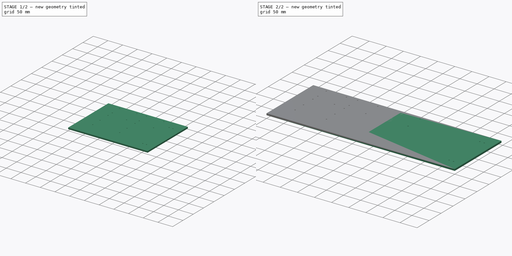
[diagram: build sequence overview — one tinted view per stage of 2, left to right]
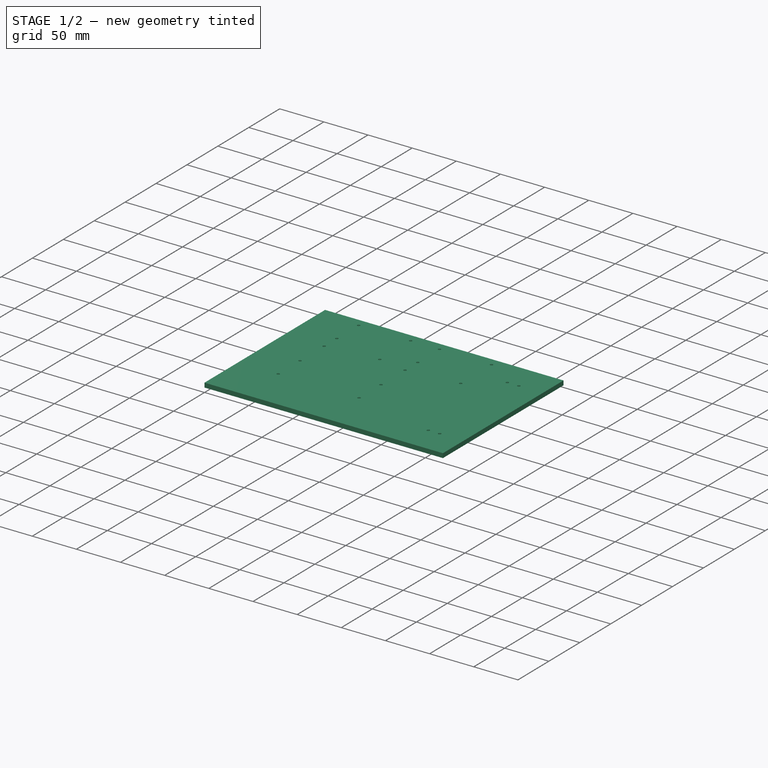
[diagram: stage 1 of 2 — iso view after this stage's code; geometry added in this stage tinted green]
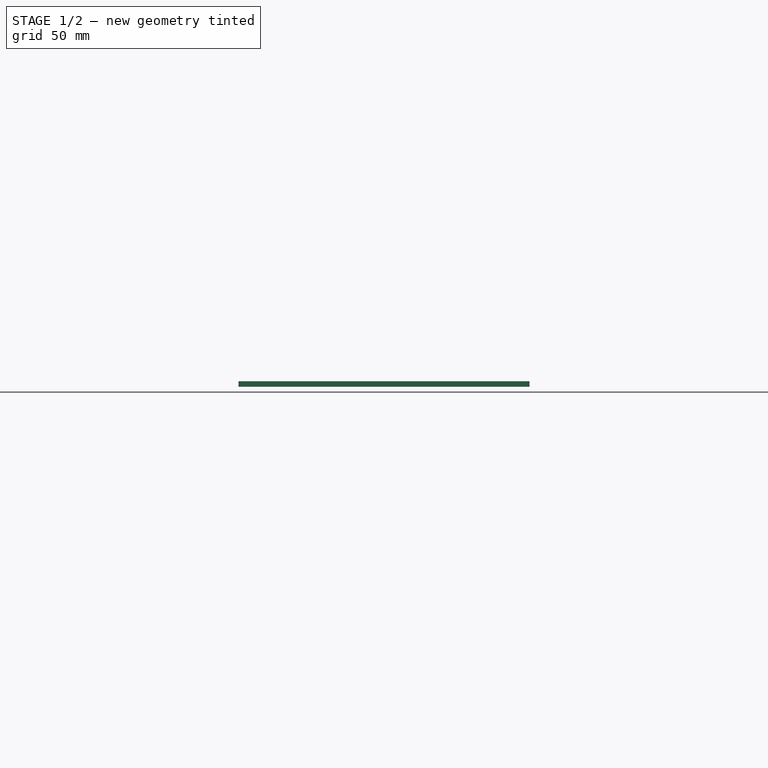
[diagram: stage 1 of 2 — front view after this stage's code; geometry added in this stage tinted green]
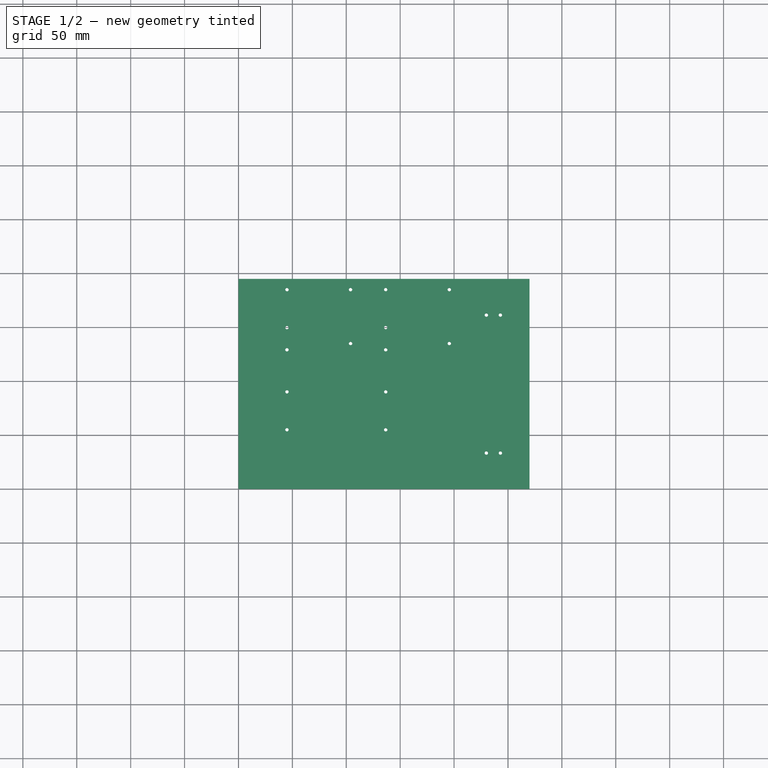
[diagram: stage 1 of 2 — top view after this stage's code; geometry added in this stage tinted green]
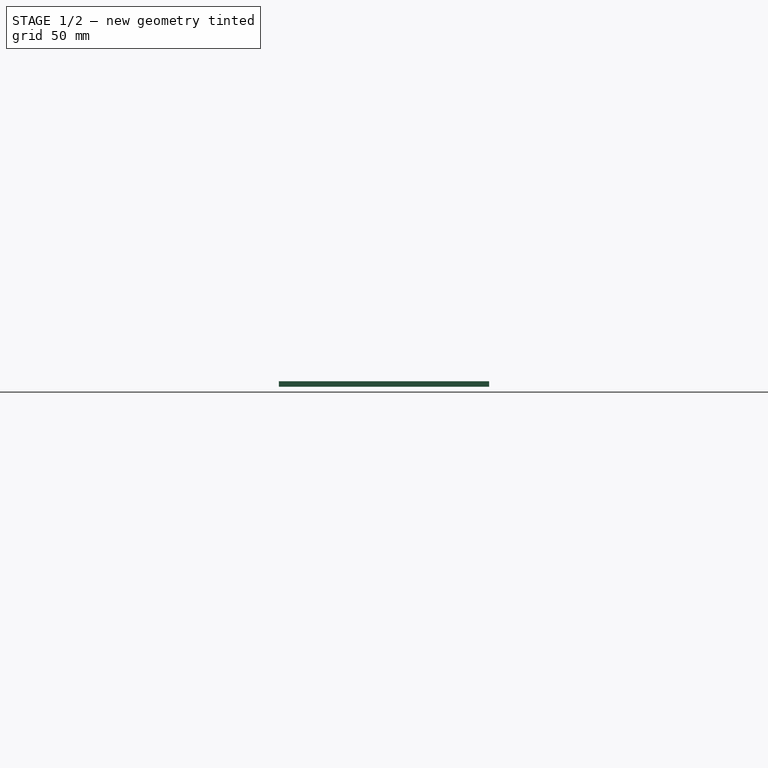
[diagram: stage 1 of 2 — right view after this stage's code; geometry added in this stage tinted green]
FCSTD DOCUMENT  (FreeCAD 0.16R6710 (Git))
Label: glassDesign
License: All rights reserved
LicenseURL: http://en.wikipedia.org/wiki/All_rights_reserved
objects: Drawing::FeatureViewPython×38, Sketcher::SketchObject×36, App::DocumentObjectGroup×11, Part::Box×2, PartDesign::Pocket×2, Drawing::FeatureViewPart×2, Drawing::FeaturePage×1
note: 42 computed .brp shape members not serialized (recipe doc carries the construction recipe); baked Part::Feature solids carry a one-line shape summary decoded from their .brp

FEATURE [Sketcher::SketchObject] Sketch022  label="Hub"
  Placement = pos=(490,-1.5,0) rot=(0,0,1;0rad)
  sketch-geometry (4):
    g0: LineSegment StartX=0 StartY=0 StartZ=0 EndX=55.0005 EndY=0 EndZ=0
    g1: LineSegment StartX=55.0005 StartY=0 StartZ=0 EndX=55.0005 EndY=198.012 EndZ=0
    g2: LineSegment StartX=55.0005 StartY=198.012 StartZ=0 EndX=0 EndY=198.012 EndZ=0
    g3: LineSegment StartX=0 StartY=198.012 StartZ=0 EndX=0 EndY=0 EndZ=0
  constraints (9):
    c: Coincident(g0,g1)
    c: Coincident(g1,g2)
    c: Coincident(g2,g3)
    c: Coincident(g3,g0)
    c: Horizontal(g0)
    c: Horizontal(g2)
    c: Vertical(g1)
    c: Vertical(g3)
    c: Coincident(g0,g-1)
FEATURE [Sketcher::SketchObject] Sketch023  label="hole017"
  Placement = pos=(505,156.5,5) rot=(0,0,1;0rad)
  expr: Placement.Base.x = 505
  sketch-geometry (1):
    g0: Circle CenterX=4.98216 CenterY=5.02276 CenterZ=0 NormalX=0 NormalY=0 NormalZ=1 Radius=1.5614
FEATURE [Sketcher::SketchObject] Sketch024  label="hole018"
  Placement = pos=(518,156.5,5) rot=(0,0,1;0rad)
  expr: Placement.Base.x = 518
  sketch-geometry (1):
    g0: Circle CenterX=4.98216 CenterY=5.02276 CenterZ=0 NormalX=0 NormalY=0 NormalZ=1 Radius=1.5614
FEATURE [Sketcher::SketchObject] Sketch025  label="hole019"
  Placement = pos=(505,28.5,5) rot=(0,0,1;0rad)
  expr: Placement.Base.x = 505
  sketch-geometry (1):
    g0: Circle CenterX=4.98216 CenterY=5.02276 CenterZ=0 NormalX=0 NormalY=0 NormalZ=1 Radius=1.5614
FEATURE [Sketcher::SketchObject] Sketch026  label="hole020"
  Placement = pos=(518,28.5,5) rot=(0,0,1;0rad)
  expr: Placement.Base.x = 518
  sketch-geometry (1):
    g0: Circle CenterX=4.98216 CenterY=5.02276 CenterZ=0 NormalX=0 NormalY=0 NormalZ=1 Radius=1.5614
FEATURE [App::DocumentObjectGroup] Group004  label="USB_HUB"
  Group = -> [Sketch022,Sketch023,Sketch024,Sketch025,Sketch026]
FEATURE [Sketcher::SketchObject] Sketch027  label="MangOH_Right"
  Placement = pos=(255,126.6,5) rot=(0,0,1;0rad)
  sketch-geometry (4):
    g0: LineSegment StartX=0 StartY=0 StartZ=0 EndX=69.0277 EndY=0 EndZ=0
    g1: LineSegment StartX=69.0277 StartY=0 StartZ=0 EndX=69.0277 EndY=60.9956 EndZ=0
    g2: LineSegment StartX=69.0277 StartY=60.9956 StartZ=0 EndX=0 EndY=60.9956 EndZ=0
    g3: LineSegment StartX=0 StartY=60.9956 StartZ=0 EndX=0 EndY=0 EndZ=0
  constraints (8):
    c: Coincident(g0,g1)
    c: Coincident(g1,g2)
    c: Coincident(g2,g3)
    c: Coincident(g3,g0)
    c: Horizontal(g0)
    c: Horizontal(g2)
    c: Vertical(g1)
    c: Vertical(g3)
FEATURE [Sketcher::SketchObject] Sketch028  label="hole021"
  Placement = pos=(255,124.2,5) rot=(0,0,1;0rad)
  sketch-geometry (1):
    g0: Circle CenterX=4.98216 CenterY=5.02276 CenterZ=0 NormalX=0 NormalY=0 NormalZ=1 Radius=1.5614
FEATURE [Sketcher::SketchObject] Sketch029  label="hole022"
  Placement = pos=(314,180,5) rot=(0,0,1;0rad)
  sketch-geometry (1):
    g0: Circle CenterX=4.98216 CenterY=5.02276 CenterZ=0 NormalX=0 NormalY=0 NormalZ=1 Radius=1.5614
FEATURE [Sketcher::SketchObject] Sketch030  label="hole023"
  Placement = pos=(314,130,5) rot=(0,0,1;0rad)
  expr: Placement.Base.x = 314mm
  sketch-geometry (1):
    g0: Circle CenterX=4.98216 CenterY=5.02276 CenterZ=0 NormalX=0 NormalY=0 NormalZ=1 Radius=1.5614
FEATURE [App::DocumentObjectGroup] Group003  label="MangOH_Red"
  Group = -> [Sketch013,Sketch014,Sketch015,Sketch016,Sketch017,Sketch018,Sketch019,Sketch020,Sketch027,Sketch028,Sketch029,Sketch030]
FEATURE [App::DocumentObjectGroup] Group  label="1/2U"
  Group = -> [Box,Group001,Group002,Group003,Pocket,Group004]
FEATURE [Drawing::FeatureViewPart] Ortho  label="OrthoBirdView"
  Direction = (0,0,1)
  HiddenWidth = 0.15
  LineWidth = 0.35
  Rotation = 0
  Scale = 1.8
  ShowHiddenLines = false
  ShowSmoothLines = false
  Source = -> Pocket
  Tolerance = 0.05
  ViewResult = <g id="OrthoBirdView"\n   transform="rotate(0,100,535) translate(100,535) scale(1.8,1.8)"\n  >\n<g   stroke="rgb(0, 0, 0)"\n   stroke-width="0.194444"\n   stroke-linecap="butt"\n   stroke-linejoin="miter"\n   fill="none"\n   transform="scale(1,-1)"\n  >\n<path id= "1" d=" M 0 0 L 0 195 " />\n<path id= "2" d=" M 0 0 L 550 0 " />\n<path id= "3" d=" M 0 195 L 550 195 " />\n<path id= "4" d=" M 550 0 L 550 195 " />\n<circle cx ="136.618" cy ="90.213" r ="1.55752" /><circle cx ="136.589" cy ="129.226" r ="1.56341" /><circle cx ="195.602" cy ="135.033" r ="1.56943" /><circle cx ="136.575" cy ="149.84" r ="1.56729" /><circle cx ="195.562" cy ="185.014" r ="1.57012" /><circle cx ="44.9823" cy ="185.036" r ="1.56973" /><circle cx ="44.9787" cy ="149.799" r ="1.55138" /><circle cx ="103.984" cy ="135.035" r ="1.58211" /><circle cx ="103.969" cy ="184.994" r ="1.56861" /><circle cx ="44.9724" cy ="129.226" r ="1.58268" /><circle cx ="136.582" cy ="185.013" r ="1.55947" /><circle cx ="44.9818" cy ="90.197" r ="1.54812" /><circle cx ="44.9507" cy ="55.0191" r ="1.56373" /><circle cx ="136.576" cy ="55.0131" r ="1.56574" /><circle cx ="259.977" cy ="129.214" r ="1.56529" /><circle cx ="259.989" cy ="55.0431" r ="1.54734" /><circle cx ="259.977" cy ="185.019" r ="1.57007" /><circle cx ="318.985" cy ="185.003" r ="1.55469" /><circle cx ="318.981" cy ="135.01" r ="1.57218" /><circle cx ="522.991" cy ="33.5385" r ="1.59235" /><circle cx ="509.982" cy ="33.538" r ="1.57125" /><circle cx ="509.963" cy ="161.544" r ="1.57303" /><circle cx ="522.975" cy ="161.527" r ="1.5597" /></g>\n</g>
  Visible = true
  X = 100
  Y = 535
FEATURE [Drawing::FeatureViewPart] Ortho001  label="OrthoDepth"
  Direction = (0,-1,0)
  HiddenWidth = 0.15
  LineWidth = 0.35
  Rotation = 90
  Scale = 1.8
  ShowHiddenLines = false
  ShowSmoothLines = false
  Source = -> Pocket
  Tolerance = 0.05
  ViewResult = <blob: 3276 chars omitted>
  Visible = true
  X = 100
  Y = 660
FEATURE [Drawing::FeatureViewPython] dim001  label="Top1"  # drawing view (typed FeaturePython)
  Rotation = 0
  ViewResult = <g> \n  <line x1="100.000000" y1="184.000000" x2="100.000000" y2="174.000000" style="stroke:rgb(0,0,255);stroke-width:0.50" />\n<line x1="180.968140" y1="201.935200" x2="180.968140" y2="174.000000" style="stroke:rgb(0,0,255);stroke-width:0.50" />\n<line x1="100.000000" y1="175.000000" x2="180.968140" y2="175.000000" style="stroke:rgb(0,0,255);stroke-width:0.50" /> \n  <polygon points="180.968140,175.000000 177.968140,174.000000 176.968140,175.000000 177.968140,176.000000" style="fill:rgb(0,0,255);stroke:rgb(0,0,255);stroke-width:0" /><polygon points="100.000000,175.000000 103.000000,176.000000 104.000000,175.000000 103.000000,174.000000" style="fill:rgb(0,0,255);stroke:rgb(0,0,255);stroke-width:0" /> \n  <text x="125.000000" y="173.000000" font-family="inherit" font-size="10" fill="rgb(0,0,255)" text-anchor="inherit" transform="rotate(0.000000 125.000000,173.000000)" >45mm</text> </g>
  Visible = true
  X = 0
  Y = 0
  arrowL1 = 3
  arrowL2 = 1
  arrowW = 2
  arrow_scheme = 0
  autoPlaceOffset = 2
  autoPlaceText = false
  click1_x = 177.634
  click1_y = 175
  click2_x = 125
  click2_y = 173
  comma_decimal_place = false
  dimension_line_overshoot = 1
  gap_datum_points = 0
  halfDimension_linear = false
  lineColor = rgb(0,0,255)
  strokeWidth = 0.5
  textFormat_linear = 45mm
  textRenderer_color = rgb(0,0,255)
  textRenderer_family = inherit
  textRenderer_size = 10
  unit_custom_scale = 1.2
  unit_scheme = 0
FEATURE [Drawing::FeatureViewPython] dim002  label="Top2"  # drawing view (typed FeaturePython)
  Rotation = 0
  ViewResult = <g> \n  <line x1="287.144200" y1="202.010800" x2="287.144200" y2="154.000000" style="stroke:rgb(0,0,255);stroke-width:0.50" />\n<line x1="100.000000" y1="184.000000" x2="100.000000" y2="154.000000" style="stroke:rgb(0,0,255);stroke-width:0.50" />\n<line x1="287.144200" y1="155.000000" x2="100.000000" y2="155.000000" style="stroke:rgb(0,0,255);stroke-width:0.50" /> \n  <polygon points="100.000000,155.000000 103.000000,156.000000 104.000000,155.000000 103.000000,154.000000" style="fill:rgb(0,0,255);stroke:rgb(0,0,255);stroke-width:0" /><polygon points="287.144200,155.000000 284.144200,154.000000 283.144200,155.000000 284.144200,156.000000" style="fill:rgb(0,0,255);stroke:rgb(0,0,255);stroke-width:0" /> \n  <text x="180.000000" y="153.000000" font-family="inherit" font-size="10" fill="rgb(0,0,255)" text-anchor="inherit" transform="rotate(0.000000 180.000000,153.000000)" >104mm</text> </g>
  Visible = true
  X = 0
  Y = 0
  arrowL1 = 3
  arrowL2 = 1
  arrowW = 2
  arrow_scheme = 0
  autoPlaceOffset = 2
  autoPlaceText = false
  click1_x = 105.086
  click1_y = 155
  click2_x = 180
  click2_y = 153
  comma_decimal_place = false
  dimension_line_overshoot = 1
  gap_datum_points = 0
  halfDimension_linear = false
  lineColor = rgb(0,0,255)
  strokeWidth = 0.5
  textFormat_linear = 104mm
  textRenderer_color = rgb(0,0,255)
  textRenderer_family = inherit
  textRenderer_size = 10
  unit_custom_scale = 1.2
  unit_scheme = 0
FEATURE [Drawing::FeatureViewPython] dim003  label="Top3"  # drawing view (typed FeaturePython)
  Rotation = 0
  ViewResult = <g> \n  <line x1="345.847600" y1="201.976600" x2="345.847600" y2="134.000000" style="stroke:rgb(0,0,255);stroke-width:0.50" />\n<line x1="100.000000" y1="184.000000" x2="100.000000" y2="134.000000" style="stroke:rgb(0,0,255);stroke-width:0.50" />\n<line x1="345.847600" y1="135.000000" x2="100.000000" y2="135.000000" style="stroke:rgb(0,0,255);stroke-width:0.50" /> \n  <polygon points="100.000000,135.000000 103.000000,136.000000 104.000000,135.000000 103.000000,134.000000" style="fill:rgb(0,0,255);stroke:rgb(0,0,255);stroke-width:0" /><polygon points="345.847600,135.000000 342.847600,134.000000 341.847600,135.000000 342.847600,136.000000" style="fill:rgb(0,0,255);stroke:rgb(0,0,255);stroke-width:0" /> \n  <text x="205.687136" y="133.000000" font-family="inherit" font-size="10" fill="rgb(0,0,255)" text-anchor="inherit" transform="rotate(0.000000 205.687136,133.000000)" >136.6mm</text> </g>
  Visible = true
  X = 0
  Y = 0
  arrowL1 = 3
  arrowL2 = 1
  arrowW = 2
  arrow_scheme = 0
  autoPlaceOffset = 2
  autoPlaceText = false
  click1_x = 106.031
  click1_y = 135
  click2_x = 205.687
  click2_y = 133
  comma_decimal_place = false
  dimension_line_overshoot = 1
  gap_datum_points = 0
  halfDimension_linear = false
  lineColor = rgb(0,0,255)
  strokeWidth = 0.5
  textFormat_linear = 136.6mm
  textRenderer_color = rgb(0,0,255)
  textRenderer_family = inherit
  textRenderer_size = 10
  unit_custom_scale = 1.2
  unit_scheme = 0
FEATURE [Drawing::FeatureViewPython] dim004  label="Top4"  # drawing view (typed FeaturePython)
  Rotation = 0
  ViewResult = <g> \n  <line x1="452.011600" y1="201.974800" x2="452.011600" y2="114.000000" style="stroke:rgb(0,0,255);stroke-width:0.50" />\n<line x1="100.000000" y1="184.000000" x2="100.000000" y2="114.000000" style="stroke:rgb(0,0,255);stroke-width:0.50" />\n<line x1="452.011600" y1="115.000000" x2="100.000000" y2="115.000000" style="stroke:rgb(0,0,255);stroke-width:0.50" /> \n  <polygon points="100.000000,115.000000 103.000000,116.000000 104.000000,115.000000 103.000000,114.000000" style="fill:rgb(0,0,255);stroke:rgb(0,0,255);stroke-width:0" /><polygon points="452.011600,115.000000 449.011600,114.000000 448.011600,115.000000 449.011600,116.000000" style="fill:rgb(0,0,255);stroke:rgb(0,0,255);stroke-width:0" /> \n  <text x="265.000000" y="113.000000" font-family="inherit" font-size="10" fill="rgb(0,0,255)" text-anchor="inherit" transform="rotate(0.000000 265.000000,113.000000)" >195.6mm</text> </g>
  Visible = true
  X = 0
  Y = 0
  arrowL1 = 3
  arrowL2 = 1
  arrowW = 2
  arrow_scheme = 0
  autoPlaceOffset = 2
  autoPlaceText = false
  click1_x = 111.369
  click1_y = 115
  click2_x = 265
  click2_y = 113
  comma_decimal_place = false
  dimension_line_overshoot = 1
  gap_datum_points = 0
  halfDimension_linear = false
  lineColor = rgb(0,0,255)
  strokeWidth = 0.5
  textFormat_linear = 195.6mm
  textRenderer_color = rgb(0,0,255)
  textRenderer_family = inherit
  textRenderer_size = 10
  unit_custom_scale = 1.2
  unit_scheme = 0
FEATURE [Drawing::FeatureViewPython] dim005  label="Top5"  # drawing view (typed FeaturePython)
  Rotation = 0
  ViewResult = <g> \n  <line x1="567.958600" y1="201.965800" x2="567.958600" y2="94.000000" style="stroke:rgb(0,0,255);stroke-width:0.50" />\n<line x1="100.000000" y1="184.000000" x2="100.000000" y2="94.000000" style="stroke:rgb(0,0,255);stroke-width:0.50" />\n<line x1="567.958600" y1="95.000000" x2="100.000000" y2="95.000000" style="stroke:rgb(0,0,255);stroke-width:0.50" /> \n  <polygon points="100.000000,95.000000 103.000000,96.000000 104.000000,95.000000 103.000000,94.000000" style="fill:rgb(0,0,255);stroke:rgb(0,0,255);stroke-width:0" /><polygon points="567.958600,95.000000 564.958600,94.000000 563.958600,95.000000 564.958600,96.000000" style="fill:rgb(0,0,255);stroke:rgb(0,0,255);stroke-width:0" /> \n  <text x="315.750000" y="93.000000" font-family="inherit" font-size="10" fill="rgb(0,0,255)" text-anchor="inherit" transform="rotate(0.000000 315.750000,93.000000)" >260mm</text> </g>
  Visible = true
  X = 0
  Y = 0
  arrowL1 = 3
  arrowL2 = 1
  arrowW = 2
  arrow_scheme = 0
  autoPlaceOffset = 2
  autoPlaceText = false
  click1_x = 104.21
  click1_y = 95
  click2_x = 315.75
  click2_y = 93
  comma_decimal_place = false
  dimension_line_overshoot = 1
  gap_datum_points = 0
  halfDimension_linear = false
  lineColor = rgb(0,0,255)
  strokeWidth = 0.5
  textFormat_linear = 260mm
  textRenderer_color = rgb(0,0,255)
  textRenderer_family = inherit
  textRenderer_size = 10
  unit_custom_scale = 1.2
  unit_scheme = 0
FEATURE [Drawing::FeatureViewPython] dim006  label="Top6"  # drawing view (typed FeaturePython)
  Rotation = 0
  ViewResult = <g> \n  <line x1="674.173000" y1="201.994600" x2="674.173000" y2="74.000000" style="stroke:rgb(0,0,255);stroke-width:0.50" />\n<line x1="100.000000" y1="184.000000" x2="100.000000" y2="74.000000" style="stroke:rgb(0,0,255);stroke-width:0.50" />\n<line x1="674.173000" y1="75.000000" x2="100.000000" y2="75.000000" style="stroke:rgb(0,0,255);stroke-width:0.50" /> \n  <polygon points="100.000000,75.000000 103.000000,76.000000 104.000000,75.000000 103.000000,74.000000" style="fill:rgb(0,0,255);stroke:rgb(0,0,255);stroke-width:0" /><polygon points="674.173000,75.000000 671.173000,74.000000 670.173000,75.000000 671.173000,76.000000" style="fill:rgb(0,0,255);stroke:rgb(0,0,255);stroke-width:0" /> \n  <text x="360.000000" y="73.000000" font-family="inherit" font-size="10" fill="rgb(0,0,255)" text-anchor="inherit" transform="rotate(0.000000 360.000000,73.000000)" >319mm</text> </g>
  Visible = true
  X = 0
  Y = 0
  arrowL1 = 3
  arrowL2 = 1
  arrowW = 2
  arrow_scheme = 0
  autoPlaceOffset = 2
  autoPlaceText = false
  click1_x = 110.517
  click1_y = 75
  click2_x = 360
  click2_y = 73
  comma_decimal_place = false
  dimension_line_overshoot = 1
  gap_datum_points = 0
  halfDimension_linear = false
  lineColor = rgb(0,0,255)
  strokeWidth = 0.5
  textFormat_linear = 319mm
  textRenderer_color = rgb(0,0,255)
  textRenderer_family = inherit
  textRenderer_size = 10
  unit_custom_scale = 1.2
  unit_scheme = 0
FEATURE [Drawing::FeatureViewPython] dim007  label="dimLength"  # drawing view (typed FeaturePython)
  Rotation = 0
  ViewResult = <g> \n  <line x1="100.000000" y1="535.000000" x2="100.000000" y2="598.500000" style="stroke:rgb(0,0,255);stroke-width:0.50" />\n<line x1="1090.000000" y1="535.000000" x2="1090.000000" y2="598.500000" style="stroke:rgb(0,0,255);stroke-width:0.50" />\n<line x1="100.000000" y1="597.500000" x2="1090.000000" y2="597.500000" style="stroke:rgb(0,0,255);stroke-width:0.50" /> \n  <polygon points="1090.000000,597.500000 1087.000000,596.500000 1086.000000,597.500000 1087.000000,598.500000" style="fill:rgb(0,0,255);stroke:rgb(0,0,255);stroke-width:0" /><polygon points="100.000000,597.500000 103.000000,598.500000 104.000000,597.500000 103.000000,596.500000" style="fill:rgb(0,0,255);stroke:rgb(0,0,255);stroke-width:0" /> \n  <text x="550.000000" y="595.500000" font-family="inherit" font-size="10" fill="rgb(0,0,255)" text-anchor="inherit" transform="rotate(0.000000 550.000000,595.500000)" >550mm</text> </g>
  Visible = true
  X = 0
  Y = 0
  arrowL1 = 3
  arrowL2 = 1
  arrowW = 2
  arrow_scheme = 0
  autoPlaceOffset = 2
  autoPlaceText = false
  click1_x = 567.97
  click1_y = 597.5
  click2_x = 550
  click2_y = 595.5
  comma_decimal_place = false
  dimension_line_overshoot = 1
  gap_datum_points = 0
  halfDimension_linear = false
  lineColor = rgb(0,0,255)
  strokeWidth = 0.5
  textFormat_linear = 550mm
  textRenderer_color = rgb(0,0,255)
  textRenderer_family = inherit
  textRenderer_size = 10
  unit_custom_scale = 1.2
  unit_scheme = 0
FEATURE [Drawing::FeatureViewPython] dim008  label="Top7"  # drawing view (typed FeaturePython)
  Rotation = 0
  ViewResult = <g> \n  <line x1="1041.385600" y1="244.444000" x2="1041.385600" y2="169.000000" style="stroke:rgb(0,0,255);stroke-width:0.50" />\n<line x1="1090.000000" y1="184.000000" x2="1090.000000" y2="169.000000" style="stroke:rgb(0,0,255);stroke-width:0.50" />\n<line x1="1041.385600" y1="170.000000" x2="1090.000000" y2="170.000000" style="stroke:rgb(0,0,255);stroke-width:0.50" /> \n  <polygon points="1090.000000,170.000000 1087.000000,169.000000 1086.000000,170.000000 1087.000000,171.000000" style="fill:rgb(0,0,255);stroke:rgb(0,0,255);stroke-width:0" /><polygon points="1041.385600,170.000000 1044.385600,171.000000 1045.385600,170.000000 1044.385600,169.000000" style="fill:rgb(0,0,255);stroke:rgb(0,0,255);stroke-width:0" /> \n  <text x="1050.000000" y="167.000000" font-family="inherit" font-size="10" fill="rgb(0,0,255)" text-anchor="inherit" transform="rotate(0.000000 1050.000000,167.000000)" >27mm</text> </g>
  Visible = true
  X = 0
  Y = 0
  arrowL1 = 3
  arrowL2 = 1
  arrowW = 2
  arrow_scheme = 0
  autoPlaceOffset = 2
  autoPlaceText = false
  click1_x = 1063.64
  click1_y = 170
  click2_x = 1050
  click2_y = 167
  comma_decimal_place = false
  dimension_line_overshoot = 1
  gap_datum_points = 0
  halfDimension_linear = false
  lineColor = rgb(0,0,255)
  strokeWidth = 0.5
  textFormat_linear = 27mm
  textRenderer_color = rgb(0,0,255)
  textRenderer_family = inherit
  textRenderer_size = 10
  unit_custom_scale = 1.2
  unit_scheme = 0
FEATURE [Drawing::FeatureViewPython] dim009  label="Top8"  # drawing view (typed FeaturePython)
  Rotation = 0
  ViewResult = <g> \n  <line x1="1017.949600" y1="244.454800" x2="1017.949600" y2="149.000000" style="stroke:rgb(0,0,255);stroke-width:0.50" />\n<line x1="1090.000000" y1="184.000000" x2="1090.000000" y2="149.000000" style="stroke:rgb(0,0,255);stroke-width:0.50" />\n<line x1="1017.949600" y1="150.000000" x2="1090.000000" y2="150.000000" style="stroke:rgb(0,0,255);stroke-width:0.50" /> \n  <polygon points="1090.000000,150.000000 1087.000000,149.000000 1086.000000,150.000000 1087.000000,151.000000" style="fill:rgb(0,0,255);stroke:rgb(0,0,255);stroke-width:0" /><polygon points="1017.949600,150.000000 1020.949600,151.000000 1021.949600,150.000000 1020.949600,149.000000" style="fill:rgb(0,0,255);stroke:rgb(0,0,255);stroke-width:0" /> \n  <text x="1040.000000" y="147.000000" font-family="inherit" font-size="10" fill="rgb(0,0,255)" text-anchor="inherit" transform="rotate(0.000000 1040.000000,147.000000)" >40mm</text> </g>
  Visible = true
  X = 0
  Y = 0
  arrowL1 = 3
  arrowL2 = 1
  arrowW = 2
  arrow_scheme = 0
  autoPlaceOffset = 2
  autoPlaceText = false
  click1_x = 1086.7
  click1_y = 150
  click2_x = 1040
  click2_y = 147
  comma_decimal_place = false
  dimension_line_overshoot = 1
  gap_datum_points = 0
  halfDimension_linear = false
  lineColor = rgb(0,0,255)
  strokeWidth = 0.5
  textFormat_linear = 40mm
  textRenderer_color = rgb(0,0,255)
  textRenderer_family = inherit
  textRenderer_size = 10
  unit_custom_scale = 1.2
  unit_scheme = 0
FEATURE [Part::Box] Box001  label="1/4"
  Height = 5
  Length = 270
  Width = 195
FEATURE [Sketcher::SketchObject] Sketch031
  Placement = pos=(0,0,5) rot=(0,0,1;0rad)
  Support = -> Box001 [Face6]
  sketch-geometry (18):
    g0: Circle CenterX=45.0007 CenterY=185.02 CenterZ=0 NormalX=0 NormalY=0 NormalZ=1 Radius=1.5637
    g1: Circle CenterX=44.9816 CenterY=149.782 CenterZ=0 NormalX=0 NormalY=0 NormalZ=1 Radius=1.56346
    g2: Circle CenterX=44.9549 CenterY=129.227 CenterZ=0 NormalX=0 NormalY=0 NormalZ=1 Radius=1.57064
    g3: Circle CenterX=103.96 CenterY=185.006 CenterZ=0 NormalX=0 NormalY=0 NormalZ=1 Radius=1.5747
    g4: Circle CenterX=136.577 CenterY=185.015 CenterZ=0 NormalX=0 NormalY=0 NormalZ=1 Radius=1.55657
    g5: Circle CenterX=103.983 CenterY=135.049 CenterZ=0 NormalX=0 NormalY=0 NormalZ=1 Radius=1.56664
    g6: Circle CenterX=195.553 CenterY=185.004 CenterZ=0 NormalX=0 NormalY=0 NormalZ=1 Radius=1.56353
    g7: Circle CenterX=136.581 CenterY=149.836 CenterZ=0 NormalX=0 NormalY=0 NormalZ=1 Radius=1.55376
    g8: Circle CenterX=136.592 CenterY=129.231 CenterZ=0 NormalX=0 NormalY=0 NormalZ=1 Radius=1.55586
    g9: Circle CenterX=44.9814 CenterY=90.2026 CenterZ=0 NormalX=0 NormalY=0 NormalZ=1 Radius=1.53762
    g10: Circle CenterX=136.624 CenterY=90.2052 CenterZ=0 NormalX=0 NormalY=0 NormalZ=1 Radius=1.5579
    g11: Circle CenterX=44.9591 CenterY=55.0195 CenterZ=0 NormalX=0 NormalY=0 NormalZ=1 Radius=1.55028
    g12: Circle CenterX=136.581 CenterY=55.0015 CenterZ=0 NormalX=0 NormalY=0 NormalZ=1 Radius=1.5621
    g13: Circle CenterX=195.607 CenterY=135.022 CenterZ=0 NormalX=0 NormalY=0 NormalZ=1 Radius=1.5583
    g14: Circle CenterX=229.972 CenterY=161.408 CenterZ=0 NormalX=0 NormalY=0 NormalZ=1 Radius=1.56999
    g15: Circle CenterX=242.978 CenterY=161.431 CenterZ=0 NormalX=0 NormalY=0 NormalZ=1 Radius=1.57387
    g16: Circle CenterX=229.973 CenterY=33.4261 CenterZ=0 NormalX=0 NormalY=0 NormalZ=1 Radius=1.57027
    g17: Circle CenterX=242.986 CenterY=33.4186 CenterZ=0 NormalX=0 NormalY=0 NormalZ=1 Radius=1.55472
FEATURE [Sketcher::SketchObject] Sketch033  label="hole025"
  Placement = pos=(238,156.4,5) rot=(0,0,1;0rad)
  expr: Placement.Base.x = 238
  sketch-geometry (1):
    g0: Circle CenterX=4.98216 CenterY=5.02276 CenterZ=0 NormalX=0 NormalY=0 NormalZ=1 Radius=1.5614
FEATURE [Sketcher::SketchObject] Sketch034  label="hole026"
  Placement = pos=(225,28.4,5) rot=(0,0,1;0rad)
  expr: Placement.Base.x = 225
  sketch-geometry (1):
    g0: Circle CenterX=4.98216 CenterY=5.02276 CenterZ=0 NormalX=0 NormalY=0 NormalZ=1 Radius=1.5614
FEATURE [Sketcher::SketchObject] Sketch035  label="hole027"
  Placement = pos=(238,28.4,5) rot=(0,0,1;0rad)
  expr: Placement.Base.x = 238
  sketch-geometry (1):
    g0: Circle CenterX=4.98216 CenterY=5.02276 CenterZ=0 NormalX=0 NormalY=0 NormalZ=1 Radius=1.5614
FEATURE [Sketcher::SketchObject] Sketch036  label="hole028"
  Placement = pos=(225,156.4,5) rot=(0,0,1;0rad)
  expr: Placement.Base.x = 225
  sketch-geometry (1):
    g0: Circle CenterX=4.98216 CenterY=5.02276 CenterZ=0 NormalX=0 NormalY=0 NormalZ=1 Radius=1.5614
FEATURE [App::DocumentObjectGroup] Group006  label="USB_HUB001"
  Group = -> [Sketch033,Sketch034,Sketch035,Sketch036]
FEATURE [PartDesign::Pocket] Pocket001
  Length = 5
  Sketch = -> Sketch031
  Type = 0
FEATURE [App::DocumentObjectGroup] Group005  label="1/4U"
  Group = -> [Box001,Group006,Pocket001]
FEATURE [Drawing::FeatureViewPython] centerLines001  label="centerLinesTD1"  # drawing view (typed FeaturePython)
  Rotation = 0
  ViewResult = <blob: 3144 chars omitted>
  Visible = true
  X = 0
  Y = 0
  centerLine_color = rgb(0,0,255)
  centerLine_len_dash = 6
  centerLine_len_dot = 3
  centerLine_len_gap = 2
  centerLine_width = 0.32
  click1_x = 181.044
  click1_y = 436.011
  click2_x = 232.445
  click2_y = 367.128
FEATURE [Drawing::FeatureViewPython] centerLines002  label="centerLinesTD2"  # drawing view (typed FeaturePython)
  Rotation = 0
  ViewResult = <g transform="scale(1.800000,1.800000)" stroke="rgb(0,0,255)"  stroke-width="0.177778" > <path d="M 159.524556,112.228222 L 159.524556,113.894889 M 159.524556,115.006000 L 159.524556,118.339333 M 159.524556,119.450444 L 159.524556,121.117111 M 159.524556,122.228222 L 159.524556,125.561556 M 159.524556,126.672667 L 159.524556,128.339333 M 159.524556,129.450444 L 159.524556,132.783778 M 159.524556,133.894889 L 159.524556,135.561556 M 159.524556,136.672667 L 159.524556,140.006000 M 159.524556,141.117111 L 159.524556,142.783778 M 159.524556,143.894889 L 159.524556,147.228222 M 159.524556,148.339333 L 159.524556,150.006000 M 159.524556,151.117111 L 159.524556,154.450444 M 159.524556,155.561556 L 159.524556,157.228222 M 159.524556,158.339333 L 159.524556,161.672667 "/>\n<path d="M 159.524556,112.228222 L 159.524556,113.894889 M 159.524556,115.006000 L 159.524556,118.339333 M 159.524556,119.450444 L 159.524556,121.117111 M 159.524556,122.228222 L 159.524556,125.561556 M 159.524556,126.672667 L 159.524556,128.339333 M 159.524556,129.450444 L 159.524556,132.783778 M 159.524556,133.894889 L 159.524556,135.561556 M 159.524556,136.672667 L 159.524556,140.006000 M 159.524556,141.117111 L 159.524556,142.783778 M 159.524556,143.894889 L 159.524556,147.228222 M 159.524556,148.339333 L 159.524556,150.006000 M 159.524556,151.117111 L 159.524556,153.486036 "/> </g> 
  Visible = true
  X = 0
  Y = 0
  centerLine_color = rgb(0,0,255)
  centerLine_len_dash = 6
  centerLine_len_dot = 3
  centerLine_len_gap = 2
  centerLine_width = 0.32
  click1_x = 287.531
  click1_y = 292.022
  click2_x = 295.521
  click2_y = 276.275
FEATURE [Drawing::FeatureViewPython] centerLines003  label="centerLinesTD3"  # drawing view (typed FeaturePython)
  Rotation = 0
  ViewResult = <blob: 3336 chars omitted>
  Visible = true
  X = 0
  Y = 0
  centerLine_color = rgb(0,0,255)
  centerLine_len_dash = 6
  centerLine_len_dot = 3
  centerLine_len_gap = 2
  centerLine_width = 0.32
  click1_x = 346.291
  click1_y = 436.083
  click2_x = 368.371
  click2_y = 392.659
FEATURE [Drawing::FeatureViewPython] centerLines004  label="centerLinesTD4"  # drawing view (typed FeaturePython)
  Rotation = 0
  ViewResult = <g transform="scale(1.800000,1.800000)" stroke="rgb(0,0,255)"  stroke-width="0.177778" > <path d="M 251.117556,112.208222 L 251.117556,113.874889 M 251.117556,114.986000 L 251.117556,118.319333 M 251.117556,119.430444 L 251.117556,121.097111 M 251.117556,122.208222 L 251.117556,125.541556 M 251.117556,126.652667 L 251.117556,128.319333 M 251.117556,129.430444 L 251.117556,132.763778 M 251.117556,133.874889 L 251.117556,135.541556 M 251.117556,136.652667 L 251.117556,139.986000 M 251.117556,141.097111 L 251.117556,142.763778 M 251.117556,143.874889 L 251.117556,147.208222 M 251.117556,148.319333 L 251.117556,149.986000 M 251.117556,151.097111 L 251.117556,154.430444 M 251.117556,155.541556 L 251.117556,157.208222 M 251.117556,158.319333 L 251.117556,161.652667 "/>\n<path d="M 251.117556,112.208222 L 251.117556,113.874889 M 251.117556,114.986000 L 251.117556,118.319333 M 251.117556,119.430444 L 251.117556,121.097111 M 251.117556,122.208222 L 251.117556,125.541556 M 251.117556,126.652667 L 251.117556,128.319333 M 251.117556,129.430444 L 251.117556,132.763778 M 251.117556,133.874889 L 251.117556,135.541556 M 251.117556,136.652667 L 251.117556,139.986000 M 251.117556,141.097111 L 251.117556,142.763778 M 251.117556,143.874889 L 251.117556,147.208222 "/> </g> 
  Visible = true
  X = 0
  Y = 0
  centerLine_color = rgb(0,0,255)
  centerLine_len_dash = 6
  centerLine_len_dot = 3
  centerLine_len_gap = 2
  centerLine_width = 0.32
  click1_x = 452.926
  click1_y = 292.677
  click2_x = 484.086
  click2_y = 265.969
FEATURE [Drawing::FeatureViewPython] centerLines005  label="centerLinesTD5"  # drawing view (typed FeaturePython)
  Rotation = 0
  ViewResult = <blob: 3336 chars omitted>
  Visible = true
  X = 0
  Y = 0
  centerLine_color = rgb(0,0,255)
  centerLine_len_dash = 6
  centerLine_len_dot = 3
  centerLine_len_gap = 2
  centerLine_width = 0.32
  click1_x = 568.454
  click1_y = 436.194
  click2_x = 570
  click2_y = 395.566
FEATURE [Drawing::FeatureViewPython] centerLines006  label="centerLinesTD6"  # drawing view (typed FeaturePython)
  Rotation = 0
  ViewResult = <g transform="scale(1.800000,1.800000)" stroke="rgb(0,0,255)"  stroke-width="0.177778" > <path d="M 374.540556,112.219222 L 374.540556,113.885889 M 374.540556,114.997000 L 374.540556,118.330333 M 374.540556,119.441444 L 374.540556,121.108111 M 374.540556,122.219222 L 374.540556,125.552556 M 374.540556,126.663667 L 374.540556,128.330333 M 374.540556,129.441444 L 374.540556,132.774778 M 374.540556,133.885889 L 374.540556,135.552556 M 374.540556,136.663667 L 374.540556,139.997000 M 374.540556,141.108111 L 374.540556,142.774778 M 374.540556,143.885889 L 374.540556,147.219222 M 374.540556,148.330333 L 374.540556,149.997000 M 374.540556,151.108111 L 374.540556,154.441444 M 374.540556,155.552556 L 374.540556,157.219222 M 374.540556,158.330333 L 374.540556,161.663667 "/>\n<path d="M 374.540556,112.219222 L 374.540556,113.885889 M 374.540556,114.997000 L 374.540556,118.330333 M 374.540556,119.441444 L 374.540556,121.108111 M 374.540556,122.219222 L 374.540556,125.552556 M 374.540556,126.663667 L 374.540556,128.330333 M 374.540556,129.441444 L 374.540556,132.774778 M 374.540556,133.885889 L 374.540556,135.552556 M 374.540556,136.663667 L 374.540556,139.997000 M 374.540556,141.108111 L 374.540556,142.774778 "/> </g> 
  Visible = true
  X = 0
  Y = 0
  centerLine_color = rgb(0,0,255)
  centerLine_len_dash = 6
  centerLine_len_dot = 3
  centerLine_len_gap = 2
  centerLine_width = 0.32
  click1_x = 679.914
  click1_y = 291.557
  click2_x = 698.49
  click2_y = 258.614
FEATURE [Drawing::FeatureViewPython] dim010  label="dimHeight"  # drawing view (typed FeaturePython)
  Rotation = 0
  ViewResult = <g> \n  <line x1="100.000000" y1="651.000000" x2="84.000000" y2="651.000000" style="stroke:rgb(0,0,255);stroke-width:0.50" />\n<line x1="100.000000" y1="660.000000" x2="84.000000" y2="660.000000" style="stroke:rgb(0,0,255);stroke-width:0.50" />\n<line x1="85.000000" y1="651.000000" x2="85.000000" y2="660.000000" style="stroke:rgb(0,0,255);stroke-width:0.50" /> \n  <polygon points="85.000000,660.000000 84.000000,663.000000 85.000000,664.000000 86.000000,663.000000" style="fill:rgb(0,0,255);stroke:rgb(0,0,255);stroke-width:0" /><polygon points="85.000000,651.000000 86.000000,648.000000 85.000000,647.000000 84.000000,648.000000" style="fill:rgb(0,0,255);stroke:rgb(0,0,255);stroke-width:0" /> \n  <text x="80.000000" y="667.000000" font-family="inherit" font-size="10" fill="rgb(0,0,255)" text-anchor="inherit" transform="rotate(-90.000000 80.000000,667.000000)" >6mm</text> </g>
  Visible = true
  X = 0
  Y = 0
  arrowL1 = 3
  arrowL2 = 1
  arrowW = 2
  arrow_scheme = 0
  autoPlaceOffset = 2
  autoPlaceText = false
  click1_x = 85
  click1_y = 659.403
  click2_x = 80
  click2_y = 667
  comma_decimal_place = false
  dimension_line_overshoot = 1
  gap_datum_points = 0
  halfDimension_linear = false
  lineColor = rgb(0,0,255)
  strokeWidth = 0.5
  textFormat_linear = 6mm
  textRenderer_color = rgb(0,0,255)
  textRenderer_family = inherit
  textRenderer_size = 10
  unit_custom_scale = 1.2
  unit_scheme = 0
FEATURE [Drawing::FeatureViewPython] centerLines008  label="centerLinesTD8"  # drawing view (typed FeaturePython)
  Rotation = 0
  ViewResult = <blob: 3336 chars omitted>
  Visible = true
  X = 0
  Y = 0
  centerLine_color = rgb(0,0,255)
  centerLine_len_dash = 6
  centerLine_len_dot = 3
  centerLine_len_gap = 2
  centerLine_width = 0.32
  click1_x = 1043.45
  click1_y = 475.045
  click2_x = 1056.39
  click2_y = 443.117
FEATURE [Drawing::FeatureViewPython] dim011  label="Left1"  # drawing view (typed FeaturePython)
  Rotation = 0
  ViewResult = <g> \n  <line x1="100.000000" y1="535.000000" x2="91.000000" y2="535.000000" style="stroke:rgb(0,0,255);stroke-width:0.50" />\n<line x1="180.911260" y1="435.965620" x2="91.000000" y2="435.965620" style="stroke:rgb(0,0,255);stroke-width:0.50" />\n<line x1="92.000000" y1="535.000000" x2="92.000000" y2="435.965620" style="stroke:rgb(0,0,255);stroke-width:0.50" /> \n  <polygon points="92.000000,435.965620 91.000000,438.965620 92.000000,439.965620 93.000000,438.965620" style="fill:rgb(0,0,255);stroke:rgb(0,0,255);stroke-width:0" /><polygon points="92.000000,535.000000 93.000000,532.000000 92.000000,531.000000 91.000000,532.000000" style="fill:rgb(0,0,255);stroke:rgb(0,0,255);stroke-width:0" /> \n  <text x="89.000000" y="498.000000" font-family="inherit" font-size="10" fill="rgb(0,0,255)" text-anchor="inherit" transform="rotate(-90.000000 89.000000,498.000000)" >55mm</text> </g>
  Visible = true
  X = 0
  Y = 0
  arrowL1 = 3
  arrowL2 = 1
  arrowW = 2
  arrow_scheme = 0
  autoPlaceOffset = 2
  autoPlaceText = false
  click1_x = 92
  click1_y = 448.24
  click2_x = 89
  click2_y = 498
  comma_decimal_place = false
  dimension_line_overshoot = 1
  gap_datum_points = 0
  halfDimension_linear = false
  lineColor = rgb(0,0,255)
  strokeWidth = 0.5
  textFormat_linear = 55mm
  textRenderer_color = rgb(0,0,255)
  textRenderer_family = inherit
  textRenderer_size = 10
  unit_custom_scale = 1.2
  unit_scheme = 0
FEATURE [Drawing::FeatureViewPython] dim012  label="Left2"  # drawing view (typed FeaturePython)
  Rotation = 0
  ViewResult = <g> \n  <line x1="180.967240" y1="372.645400" x2="71.000000" y2="372.645400" style="stroke:rgb(0,0,255);stroke-width:0.50" />\n<line x1="100.000000" y1="535.000000" x2="71.000000" y2="535.000000" style="stroke:rgb(0,0,255);stroke-width:0.50" />\n<line x1="72.000000" y1="372.645400" x2="72.000000" y2="535.000000" style="stroke:rgb(0,0,255);stroke-width:0.50" /> \n  <polygon points="72.000000,535.000000 73.000000,532.000000 72.000000,531.000000 71.000000,532.000000" style="fill:rgb(0,0,255);stroke:rgb(0,0,255);stroke-width:0" /><polygon points="72.000000,372.645400 71.000000,375.645400 72.000000,376.645400 73.000000,375.645400" style="fill:rgb(0,0,255);stroke:rgb(0,0,255);stroke-width:0" /> \n  <text x="69.000000" y="465.000000" font-family="inherit" font-size="10" fill="rgb(0,0,255)" text-anchor="inherit" transform="rotate(-90.000000 69.000000,465.000000)" >90.2mm</text> </g>
  Visible = true
  X = 0
  Y = 0
  arrowL1 = 3
  arrowL2 = 1
  arrowW = 2
  arrow_scheme = 0
  autoPlaceOffset = 2
  autoPlaceText = false
  click1_x = 72
  click1_y = 475
  click2_x = 69
  click2_y = 465
  comma_decimal_place = false
  dimension_line_overshoot = 1
  gap_datum_points = 0
  halfDimension_linear = false
  lineColor = rgb(0,0,255)
  strokeWidth = 0.5
  textFormat_linear = 90.2mm
  textRenderer_color = rgb(0,0,255)
  textRenderer_family = inherit
  textRenderer_size = 10
  unit_custom_scale = 1.2
  unit_scheme = 0
FEATURE [Drawing::FeatureViewPython] dim013  label="Left3"  # drawing view (typed FeaturePython)
  Rotation = 0
  ViewResult = <g> \n  <line x1="180.968140" y1="201.935200" x2="91.000000" y2="201.935200" style="stroke:rgb(0,0,255);stroke-width:0.50" />\n<line x1="100.000000" y1="184.000000" x2="91.000000" y2="184.000000" style="stroke:rgb(0,0,255);stroke-width:0.50" />\n<line x1="92.000000" y1="201.935200" x2="92.000000" y2="184.000000" style="stroke:rgb(0,0,255);stroke-width:0.50" /> \n  <polygon points="92.000000,184.000000 91.000000,187.000000 92.000000,188.000000 93.000000,187.000000" style="fill:rgb(0,0,255);stroke:rgb(0,0,255);stroke-width:0" /><polygon points="92.000000,201.935200 93.000000,198.935200 92.000000,197.935200 91.000000,198.935200" style="fill:rgb(0,0,255);stroke:rgb(0,0,255);stroke-width:0" /> \n  <text x="89.000000" y="215.000000" font-family="inherit" font-size="10" fill="rgb(0,0,255)" text-anchor="inherit" transform="rotate(-90.000000 89.000000,215.000000)" >10mm</text> </g>
  Visible = true
  X = 0
  Y = 0
  arrowL1 = 3
  arrowL2 = 1
  arrowW = 2
  arrow_scheme = 0
  autoPlaceOffset = 2
  autoPlaceText = false
  click1_x = 92
  click1_y = 192.52
  click2_x = 89
  click2_y = 215
  comma_decimal_place = false
  dimension_line_overshoot = 1
  gap_datum_points = 0
  halfDimension_linear = false
  lineColor = rgb(0,0,255)
  strokeWidth = 0.5
  textFormat_linear = 10mm
  textRenderer_color = rgb(0,0,255)
  textRenderer_family = inherit
  textRenderer_size = 10
  unit_custom_scale = 1.2
  unit_scheme = 0
FEATURE [Drawing::FeatureViewPython] dim014  label="Left4"  # drawing view (typed FeaturePython)
  Rotation = 0
  ViewResult = <g> \n  <line x1="100.000000" y1="184.000000" x2="71.000000" y2="184.000000" style="stroke:rgb(0,0,255);stroke-width:0.50" />\n<line x1="180.961660" y1="265.361800" x2="71.000000" y2="265.361800" style="stroke:rgb(0,0,255);stroke-width:0.50" />\n<line x1="72.000000" y1="184.000000" x2="72.000000" y2="265.361800" style="stroke:rgb(0,0,255);stroke-width:0.50" /> \n  <polygon points="72.000000,265.361800 73.000000,262.361800 72.000000,261.361800 71.000000,262.361800" style="fill:rgb(0,0,255);stroke:rgb(0,0,255);stroke-width:0" /><polygon points="72.000000,184.000000 71.000000,187.000000 72.000000,188.000000 73.000000,187.000000" style="fill:rgb(0,0,255);stroke:rgb(0,0,255);stroke-width:0" /> \n  <text x="69.000000" y="240.000000" font-family="inherit" font-size="10" fill="rgb(0,0,255)" text-anchor="inherit" transform="rotate(-90.000000 69.000000,240.000000)" >45.2mm</text> </g>
  Visible = true
  X = 0
  Y = 0
  arrowL1 = 3
  arrowL2 = 1
  arrowW = 2
  arrow_scheme = 0
  autoPlaceOffset = 2
  autoPlaceText = false
  click1_x = 72
  click1_y = 253.02
  click2_x = 69
  click2_y = 240
  comma_decimal_place = false
  dimension_line_overshoot = 1
  gap_datum_points = 0
  halfDimension_linear = false
  lineColor = rgb(0,0,255)
  strokeWidth = 0.5
  textFormat_linear = 45.2mm
  textRenderer_color = rgb(0,0,255)
  textRenderer_family = inherit
  textRenderer_size = 10
  unit_custom_scale = 1.2
  unit_scheme = 0
FEATURE [App::DocumentObjectGroup] Group008  label="TopDim"
  Group = -> [dim001,dim002,dim003,dim004,dim005,dim006,dim008,dim009]
FEATURE [Drawing::FeatureViewPython] centerLines009  label="centerLinesTD7"  # drawing view (typed FeaturePython)
  Rotation = 0
  ViewResult = <blob: 3288 chars omitted>
  Visible = true
  X = 0
  Y = 0
  centerLine_color = rgb(0,0,255)
  centerLine_len_dash = 6
  centerLine_len_dot = 3
  centerLine_len_gap = 2
  centerLine_width = 0.32
  click1_x = 1019.2
  click1_y = 475.014
  click2_x = 1012.93
  click2_y = 438.024
FEATURE [Drawing::FeatureViewPython] dim016  label="dimWidth"  # drawing view (typed FeaturePython)
  Rotation = 0
  ViewResult = <g> \n  <line x1="1090.000000" y1="184.000000" x2="1131.000000" y2="184.000000" style="stroke:rgb(0,0,255);stroke-width:0.50" />\n<line x1="1090.000000" y1="535.000000" x2="1131.000000" y2="535.000000" style="stroke:rgb(0,0,255);stroke-width:0.50" />\n<line x1="1130.000000" y1="184.000000" x2="1130.000000" y2="535.000000" style="stroke:rgb(0,0,255);stroke-width:0.50" /> \n  <polygon points="1130.000000,535.000000 1131.000000,532.000000 1130.000000,531.000000 1129.000000,532.000000" style="fill:rgb(0,0,255);stroke:rgb(0,0,255);stroke-width:0" /><polygon points="1130.000000,184.000000 1129.000000,187.000000 1130.000000,188.000000 1131.000000,187.000000" style="fill:rgb(0,0,255);stroke:rgb(0,0,255);stroke-width:0" /> \n  <text x="1127.000000" y="370.000000" font-family="inherit" font-size="10" fill="rgb(0,0,255)" text-anchor="inherit" transform="rotate(-90.000000 1127.000000,370.000000)" >195mm</text> </g>
  Visible = true
  X = 0
  Y = 0
  arrowL1 = 3
  arrowL2 = 1
  arrowW = 2
  arrow_scheme = 0
  autoPlaceOffset = 2
  autoPlaceText = false
  click1_x = 1130
  click1_y = 461.87
  click2_x = 1127
  click2_y = 370
  comma_decimal_place = false
  dimension_line_overshoot = 1
  gap_datum_points = 0
  halfDimension_linear = false
  lineColor = rgb(0,0,255)
  strokeWidth = 0.5
  textFormat_linear = %(value)3.0fmm
  textRenderer_color = rgb(0,0,255)
  textRenderer_family = inherit
  textRenderer_size = 10
  unit_custom_scale = 1.2
  unit_scheme = 0
FEATURE [Drawing::FeatureViewPython] text001  label="Title"  # drawing view (typed FeaturePython)
  Rotation = 0
  ViewResult = <g> <text x="575.841778" y="55.000000" font-family="inherit" font-size="50" fill="rgb(0,0,0)" text-anchor="inherit" transform="rotate(0.000000 575.841778,55.000000)" >1/2U TestBed Specs</text> </g>
  Visible = true
  X = 0
  Y = 0
  click1_x = 575.842
  click1_y = 55
  rotation = 0
  text = 1/2U TestBed Specs
  textRenderer_addText_color = rgb(0,0,0)
  textRenderer_addText_family = inherit
  textRenderer_addText_size = 50
FEATURE [Drawing::FeatureViewPython] centerLines007  # drawing view (typed FeaturePython)
  Rotation = 0
  ViewResult = <blob: 7320 chars omitted>
  Visible = true
  X = 0
  Y = 0
  centerLine_color = rgb(0,0,255)
  centerLine_len_dash = 6
  centerLine_len_dot = 3
  centerLine_len_gap = 2
  centerLine_width = 0.32
  click1_x = 674.138
  click1_y = 203.234
  click2_x = 656.549
  click2_y = 201.492
FEATURE [Drawing::FeatureViewPython] centerLines010  # drawing view (typed FeaturePython)
  Rotation = 0
  ViewResult = <blob: 2424 chars omitted>
  Visible = true
  X = 0
  Y = 0
  centerLine_color = rgb(0,0,255)
  centerLine_len_dash = 6
  centerLine_len_dot = 3
  centerLine_len_gap = 2
  centerLine_width = 0.32
  click1_x = 345.883
  click1_y = 265.217
  click2_x = 322.905
  click2_y = 263.645
FEATURE [Drawing::FeatureViewPython] centerLines011  # drawing view (typed FeaturePython)
  Rotation = 0
  ViewResult = <blob: 5736 chars omitted>
  Visible = true
  X = 0
  Y = 0
  centerLine_color = rgb(0,0,255)
  centerLine_len_dash = 6
  centerLine_len_dot = 3
  centerLine_len_gap = 2
  centerLine_width = 0.32
  click1_x = 567.989
  click1_y = 302.345
  click2_x = 546.405
  click2_y = 302.429
FEATURE [Drawing::FeatureViewPython] centerLines012  # drawing view (typed FeaturePython)
  Rotation = 0
  ViewResult = <blob: 2328 chars omitted>
  Visible = true
  X = 0
  Y = 0
  centerLine_color = rgb(0,0,255)
  centerLine_len_dash = 6
  centerLine_len_dot = 3
  centerLine_len_gap = 2
  centerLine_width = 0.32
  click1_x = 345.834
  click1_y = 375.295
  click2_x = 308.537
  click2_y = 375.295
FEATURE [Drawing::FeatureViewPython] centerLines013  # drawing view (typed FeaturePython)
  Rotation = 0
  ViewResult = <blob: 5688 chars omitted>
  Visible = true
  X = 0
  Y = 0
  centerLine_color = rgb(0,0,255)
  centerLine_len_dash = 6
  centerLine_len_dot = 3
  centerLine_len_gap = 2
  centerLine_width = 0.32
  click1_x = 568.232
  click1_y = 436.62
  click2_x = 539.29
  click2_y = 434.831
FEATURE [Drawing::FeatureViewPython] centerLines014  # drawing view (typed FeaturePython)
  Rotation = 0
  ViewResult = <blob: 5784 chars omitted>
  Visible = true
  X = 0
  Y = 0
  centerLine_color = rgb(0,0,255)
  centerLine_len_dash = 6
  centerLine_len_dot = 3
  centerLine_len_gap = 2
  centerLine_width = 0.32
  click1_x = 674.212
  click1_y = 291.872
  click2_x = 658.418
  click2_y = 291.872
FEATURE [Drawing::FeatureViewPython] dim015  label="Left5"  # drawing view (typed FeaturePython)
  Rotation = 0
  ViewResult = <g> \n  <line x1="100.000000" y1="184.000000" x2="51.001149" y2="184.000000" style="stroke:rgb(0,0,255);stroke-width:0.50" />\n<line x1="287.171200" y1="291.937000" x2="51.001149" y2="291.937000" style="stroke:rgb(0,0,255);stroke-width:0.50" />\n<line x1="52.001149" y1="184.000000" x2="52.001149" y2="291.937000" style="stroke:rgb(0,0,255);stroke-width:0.50" /> \n  <polygon points="52.001149,291.937000 53.001149,288.937000 52.001149,287.937000 51.001149,288.937000" style="fill:rgb(0,0,255);stroke:rgb(0,0,255);stroke-width:0" /><polygon points="52.001149,184.000000 51.001149,187.000000 52.001149,188.000000 53.001149,187.000000" style="fill:rgb(0,0,255);stroke:rgb(0,0,255);stroke-width:0" /> \n  <text x="49.000000" y="250.000000" font-family="inherit" font-size="10" fill="rgb(0,0,255)" text-anchor="inherit" transform="rotate(-90.000000 49.000000,250.000000)" >60mm</text> </g>
  Visible = true
  X = 0
  Y = 0
  arrowL1 = 3
  arrowL2 = 1
  arrowW = 2
  arrow_scheme = 0
  autoPlaceOffset = 2
  autoPlaceText = false
  click1_x = 52.0011
  click1_y = 285.14
  click2_x = 49
  click2_y = 250
  comma_decimal_place = false
  dimension_line_overshoot = 1
  gap_datum_points = 0
  halfDimension_linear = false
  lineColor = rgb(0,0,255)
  strokeWidth = 0.5
  textFormat_linear = 60mm
  textRenderer_color = rgb(0,0,255)
  textRenderer_family = inherit
  textRenderer_size = 10
  unit_custom_scale = 1.2
  unit_scheme = 0
FEATURE [Drawing::FeatureViewPython] dim017  label="Left6"  # drawing view (typed FeaturePython)
  Rotation = 0
  ViewResult = <g> \n  <line x1="100.000000" y1="535.000000" x2="51.000000" y2="535.000000" style="stroke:rgb(0,0,255);stroke-width:0.50" />\n<line x1="180.950320" y1="302.393200" x2="51.000000" y2="302.393200" style="stroke:rgb(0,0,255);stroke-width:0.50" />\n<line x1="52.000000" y1="535.000000" x2="52.000000" y2="302.393200" style="stroke:rgb(0,0,255);stroke-width:0.50" /> \n  <polygon points="52.000000,302.393200 51.000000,305.393200 52.000000,306.393200 53.000000,305.393200" style="fill:rgb(0,0,255);stroke:rgb(0,0,255);stroke-width:0" /><polygon points="52.000000,535.000000 53.000000,532.000000 52.000000,531.000000 51.000000,532.000000" style="fill:rgb(0,0,255);stroke:rgb(0,0,255);stroke-width:0" /> \n  <text x="49.000000" y="435.000000" font-family="inherit" font-size="10" fill="rgb(0,0,255)" text-anchor="inherit" transform="rotate(-90.000000 49.000000,435.000000)" >129.2mm</text> </g>
  Visible = true
  X = 0
  Y = 0
  arrowL1 = 3
  arrowL2 = 1
  arrowW = 2
  arrow_scheme = 0
  autoPlaceOffset = 2
  autoPlaceText = false
  click1_x = 52
  click1_y = 340.644
  click2_x = 49
  click2_y = 435
  comma_decimal_place = false
  dimension_line_overshoot = 1
  gap_datum_points = 0
  halfDimension_linear = false
  lineColor = rgb(0,0,255)
  strokeWidth = 0.5
  textFormat_linear = 129.2mm
  textRenderer_color = rgb(0,0,255)
  textRenderer_family = inherit
  textRenderer_size = 10
  unit_custom_scale = 1.2
  unit_scheme = 0
FEATURE [App::DocumentObjectGroup] Group009  label="LeftDim"
  Group = -> [dim011,dim012,dim013,dim014,dim015,dim017]
FEATURE [Drawing::FeatureViewPython] dim018  label="Right1"  # drawing view (typed FeaturePython)
  Rotation = 0
  ViewResult = <g> \n  <line x1="1090.000000" y1="184.000000" x2="949.000000" y2="184.000000" style="stroke:rgb(0,0,255);stroke-width:0.50" />\n<line x1="1017.949600" y1="244.454800" x2="949.000000" y2="244.454800" style="stroke:rgb(0,0,255);stroke-width:0.50" />\n<line x1="950.000000" y1="184.000000" x2="950.000000" y2="244.454800" style="stroke:rgb(0,0,255);stroke-width:0.50" /> \n  <polygon points="950.000000,244.454800 951.000000,241.454800 950.000000,240.454800 949.000000,241.454800" style="fill:rgb(0,0,255);stroke:rgb(0,0,255);stroke-width:0" /><polygon points="950.000000,184.000000 949.000000,187.000000 950.000000,188.000000 951.000000,187.000000" style="fill:rgb(0,0,255);stroke:rgb(0,0,255);stroke-width:0" /> \n  <text x="947.000000" y="230.000000" font-family="inherit" font-size="10" fill="rgb(0,0,255)" text-anchor="inherit" transform="rotate(-90.000000 947.000000,230.000000)" >33.5mm</text> </g>
  Visible = true
  X = 0
  Y = 0
  arrowL1 = 3
  arrowL2 = 1
  arrowW = 2
  arrow_scheme = 0
  autoPlaceOffset = 2
  autoPlaceText = false
  click1_x = 950
  click1_y = 239.283
  click2_x = 947
  click2_y = 230
  comma_decimal_place = false
  dimension_line_overshoot = 1
  gap_datum_points = 0
  halfDimension_linear = false
  lineColor = rgb(0,0,255)
  strokeWidth = 0.5
  textFormat_linear = 33.5mm
  textRenderer_color = rgb(0,0,255)
  textRenderer_family = inherit
  textRenderer_size = 10
  unit_custom_scale = 1.2
  unit_scheme = 0
FEATURE [Drawing::FeatureViewPython] dim019  label="Right2"  # drawing view (typed FeaturePython)
  Rotation = 0
  ViewResult = <g> \n  <line x1="1017.967600" y1="474.631600" x2="949.000000" y2="474.631600" style="stroke:rgb(0,0,255);stroke-width:0.50" />\n<line x1="1090.000000" y1="535.000000" x2="949.000000" y2="535.000000" style="stroke:rgb(0,0,255);stroke-width:0.50" />\n<line x1="950.000000" y1="474.631600" x2="950.000000" y2="535.000000" style="stroke:rgb(0,0,255);stroke-width:0.50" /> \n  <polygon points="950.000000,535.000000 951.000000,532.000000 950.000000,531.000000 949.000000,532.000000" style="fill:rgb(0,0,255);stroke:rgb(0,0,255);stroke-width:0" /><polygon points="950.000000,474.631600 949.000000,477.631600 950.000000,478.631600 951.000000,477.631600" style="fill:rgb(0,0,255);stroke:rgb(0,0,255);stroke-width:0" /> \n  <text x="947.000000" y="520.000000" font-family="inherit" font-size="10" fill="rgb(0,0,255)" text-anchor="inherit" transform="rotate(-90.000000 947.000000,520.000000)" >33.5mm</text> </g>
  Visible = true
  X = 0
  Y = 0
  arrowL1 = 3
  arrowL2 = 1
  arrowW = 2
  arrow_scheme = 0
  autoPlaceOffset = 2
  autoPlaceText = false
  click1_x = 950
  click1_y = 508.569
  click2_x = 947
  click2_y = 520
  comma_decimal_place = false
  dimension_line_overshoot = 1
  gap_datum_points = 0
  halfDimension_linear = false
  lineColor = rgb(0,0,255)
  strokeWidth = 0.5
  textFormat_linear = 33.5mm
  textRenderer_color = rgb(0,0,255)
  textRenderer_family = inherit
  textRenderer_size = 10
  unit_custom_scale = 1.2
  unit_scheme = 0
FEATURE [Drawing::FeatureViewPython] centerLines015  # drawing view (typed FeaturePython)
  Rotation = 0
  ViewResult = <g transform="scale(1.800000,1.800000)" stroke="rgb(0,0,255)"  stroke-width="0.177778" > <path d="M 565.537556,263.684222 L 567.204222,263.684222 M 568.315333,263.684222 L 571.648667,263.684222 M 572.759778,263.684222 L 574.426444,263.684222 M 575.537556,263.684222 L 578.654993,263.684222 "/>\n<path d="M 565.537556,263.684222 L 567.204222,263.684222 M 568.315333,263.684222 L 571.648667,263.684222 M 572.759778,263.684222 L 573.951846,263.684222 "/> </g> 
  Visible = true
  X = 0
  Y = 0
  centerLine_color = rgb(0,0,255)
  centerLine_len_dash = 6
  centerLine_len_dot = 3
  centerLine_len_gap = 2
  centerLine_width = 0.32
  click1_x = 1041.58
  click1_y = 474.581
  click2_x = 1033.11
  click2_y = 474.279
FEATURE [Drawing::FeatureViewPython] centerLines016  # drawing view (typed FeaturePython)
  Rotation = 0
  ViewResult = <g transform="scale(1.800000,1.800000)" stroke="rgb(0,0,255)"  stroke-width="0.177778" > <path d="M 565.518556,135.678222 L 567.185222,135.678222 M 568.296333,135.678222 L 571.629667,135.678222 M 572.740778,135.678222 L 574.407444,135.678222 M 575.518556,135.678222 L 578.748309,135.678222 "/>\n<path d="M 565.518556,135.678222 L 567.185222,135.678222 M 568.296333,135.678222 L 571.629667,135.678222 M 572.740778,135.678222 L 573.289300,135.678222 "/> </g> 
  Visible = true
  X = 0
  Y = 0
  centerLine_color = rgb(0,0,255)
  centerLine_len_dash = 6
  centerLine_len_dot = 3
  centerLine_len_gap = 2
  centerLine_width = 0.32
  click1_x = 1041.75
  click1_y = 244.396
  click2_x = 1031.92
  click2_y = 242.296
FEATURE [App::DocumentObjectGroup] Group007  label="centerLines"
  Group = -> [centerLines001,centerLines002,centerLines003,centerLines004,centerLines005,centerLines006,centerLines008,centerLines009,centerLines007,centerLines010,centerLines011,centerLines012,centerLines013,centerLines014,centerLines015,centerLines016]
FEATURE [App::DocumentObjectGroup] Group010  label="RightDim"
  Group = -> [dim018,dim019]
FEATURE [Drawing::FeatureViewPython] dia001  # drawing view (typed FeaturePython)
  Rotation = 0
  ViewResult = <g>  <circle cx ="674.165800" cy ="291.982000" r="0.250000" stroke="none" fill="rgb(0,0,255)" /> \n<line x1="713.869787" y1="251.872186" x2="672.174942" y2="293.993207" style="stroke:rgb(0,0,255);stroke-width:0.50" />\n<polygon points="676.156658,289.970793 678.977858,288.542216 678.970667,287.128021 677.556472,287.135212" style="fill:rgb(0,0,255);stroke:rgb(0,0,255);stroke-width:0" />\n<polygon points="672.174942,293.993207 669.353742,295.421784 669.360933,296.835979 670.775128,296.828788" style="fill:rgb(0,0,255);stroke:rgb(0,0,255);stroke-width:0" />\n<line x1="713.869787" y1="251.872186" x2="816.961119" y2="251.872186" style="stroke:rgb(0,0,255);stroke-width:0.50" />\n<text x="750.000000" y="250.000000" font-family="inherit" font-size="10" fill="rgb(0,0,255)" text-anchor="inherit" transform="rotate(0.000000 750.000000,250.000000)" >Ø3.2mm</text> </g>
  Visible = true
  X = 0
  Y = 0
  arrowL1 = 3
  arrowL2 = 1
  arrowW = 2
  arrow_scheme = 0
  autoPlaceOffset = 2
  autoPlaceText = false
  centerPointDia = 0.5
  click1_x = 713.87
  click1_y = 251.872
  click2_x = 816.961
  click2_y = 244
  click3_x = 750
  click3_y = 250
  comma_decimal_place = false
  lineColor = rgb(0,0,255)
  strokeWidth = 0.5
  textFormat_circular = Ø3.2mm
  textRenderer_color = rgb(0,0,255)
  textRenderer_family = inherit
  textRenderer_size = 10
  unit_custom_scale = 1.2
  unit_scheme = 0
FEATURE [Drawing::FeatureViewPython] text002  label="Caption"  # drawing view (typed FeaturePython)
  Rotation = 0
  ViewResult = <g> <text x="200.000000" y="750.000000" font-family="inherit" font-size="20" fill="rgb(0,0,0)" text-anchor="inherit" transform="rotate(0.000000 200.000000,750.000000)" >*Diameter of the holes are all 3.2mm</text> </g>
  Visible = true
  X = 0
  Y = 0
  click1_x = 200
  click1_y = 750
  rotation = 0
  text = *Diameter of the holes are all 3.2mm
  textRenderer_addText_color = rgb(0,0,0)
  textRenderer_addText_family = inherit
  textRenderer_addText_size = 20
FEATURE [Drawing::FeaturePage] Page  label="1/2Upage"
  EditableTexts = Jimmy Huang | 1/2U TestBed | FreeCAD Drawing | A0 | X / Y | N/A | N/A | N/A | 12/07/2017 | VER 1
  Group = -> [Ortho,Ortho001,dim007,dim010,Group007,Group008,Group009,dim016,text001,Group010,dia001,text002]
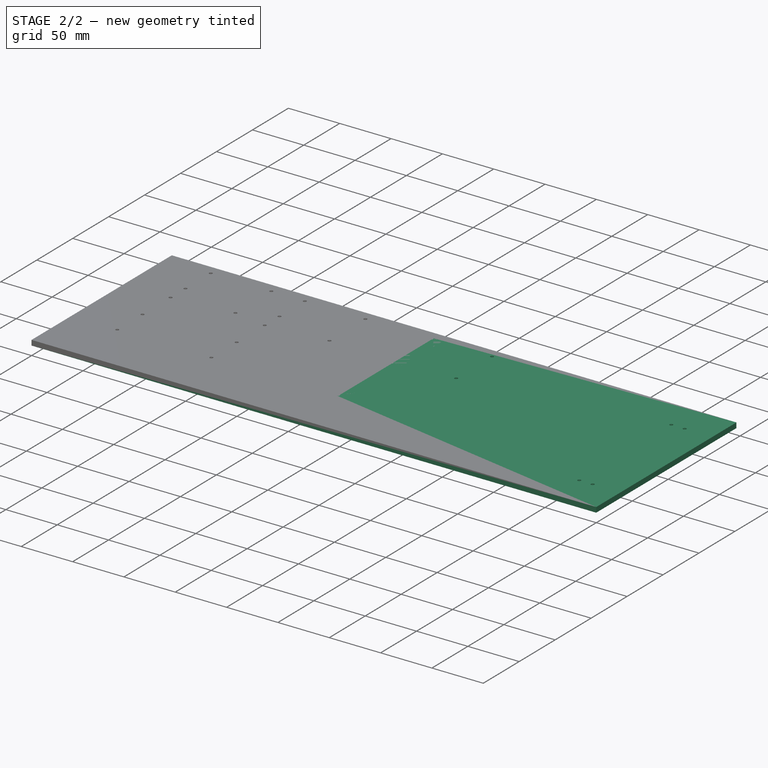
[diagram: stage 2 of 2 — iso view after this stage's code; geometry added in this stage tinted green]
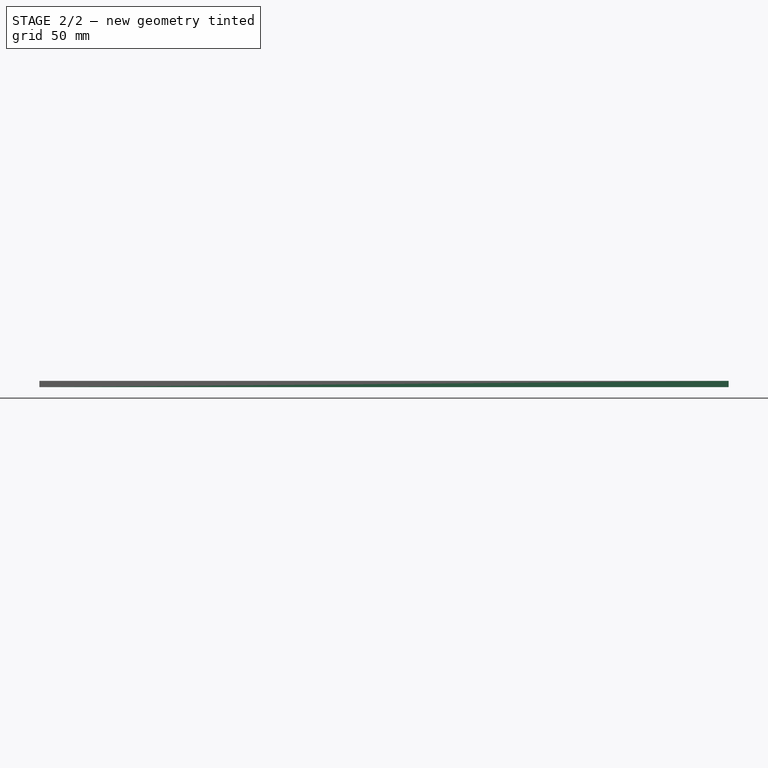
[diagram: stage 2 of 2 — front view after this stage's code; geometry added in this stage tinted green]
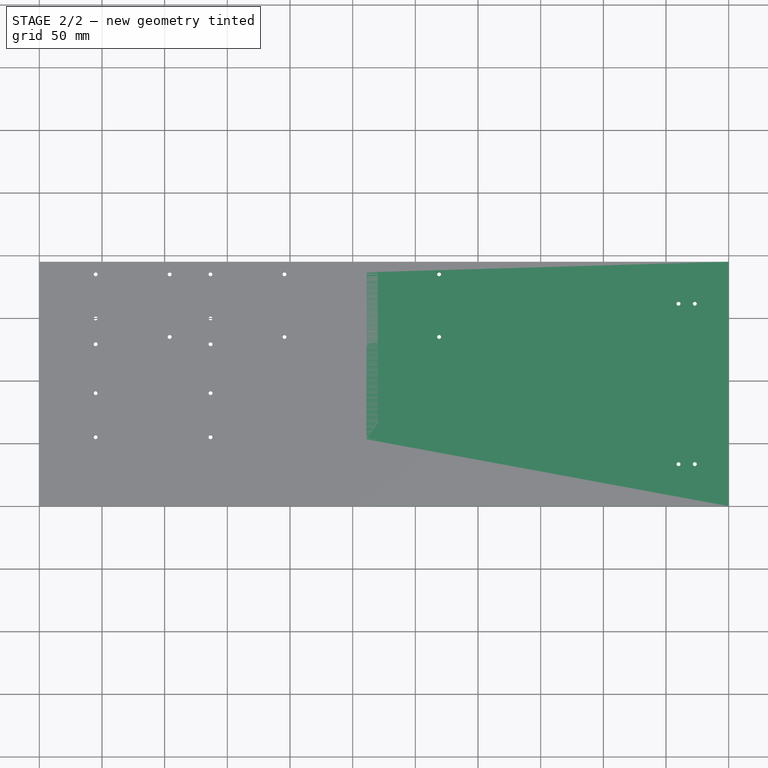
[diagram: stage 2 of 2 — top view after this stage's code; geometry added in this stage tinted green]
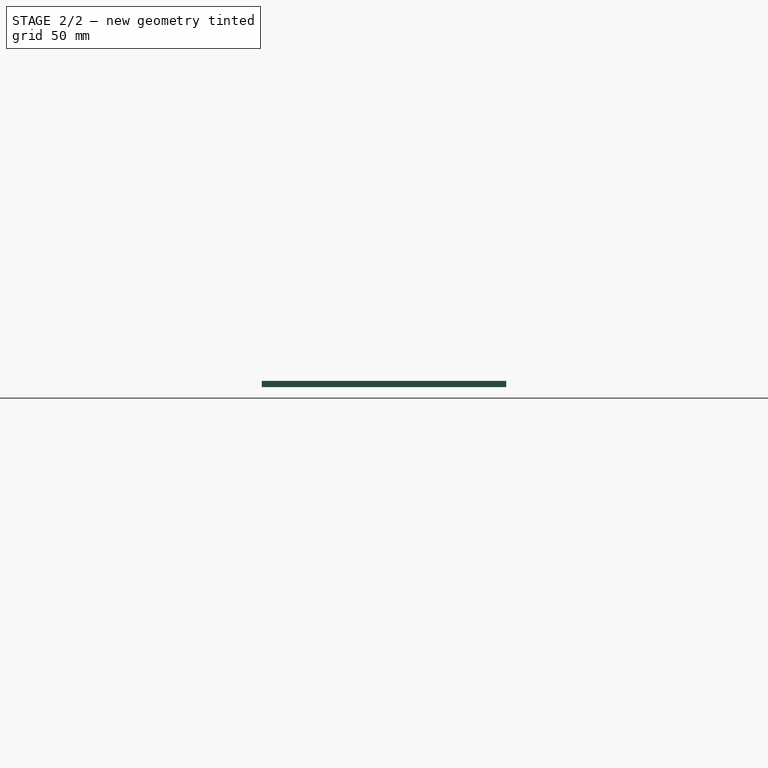
[diagram: stage 2 of 2 — right view after this stage's code; geometry added in this stage tinted green]
FEATURE [Part::Box] Box  label="1/2U Plate"
  Height = 5
  Length = 550
  Width = 195
FEATURE [Sketcher::SketchObject] Sketch  label="AR"
  Placement = pos=(40,50,5) rot=(0,0,1;0rad)
  sketch-geometry (4):
    g0: LineSegment StartX=0 StartY=0 StartZ=0 EndX=224.952 EndY=0 EndZ=0
    g1: LineSegment StartX=224.952 StartY=0 StartZ=0 EndX=224.952 EndY=139.966 EndZ=0
    g2: LineSegment StartX=224.952 StartY=139.966 StartZ=0 EndX=0 EndY=139.966 EndZ=0
    g3: LineSegment StartX=0 StartY=139.966 StartZ=0 EndX=0 EndY=0 EndZ=0
  constraints (8):
    c: Coincident(g0,g1)
    c: Coincident(g1,g2)
    c: Coincident(g2,g3)
    c: Coincident(g3,g0)
    c: Horizontal(g0)
    c: Horizontal(g2)
    c: Vertical(g1)
    c: Vertical(g3)
FEATURE [Sketcher::SketchObject] Sketch001  label="hole1"
  Placement = pos=(40,50,5) rot=(0,0,1;0rad)
  sketch-geometry (1):
    g0: Circle CenterX=4.97876 CenterY=5.0222 CenterZ=0 NormalX=0 NormalY=0 NormalZ=1 Radius=1.5614
FEATURE [Sketcher::SketchObject] Sketch002  label="hole2"
  Placement = pos=(40,180,5) rot=(0,0,1;0rad)
  sketch-geometry (1):
    g0: Circle CenterX=4.98216 CenterY=5.02276 CenterZ=0 NormalX=0 NormalY=0 NormalZ=1 Radius=1.5614
FEATURE [Sketcher::SketchObject] Sketch003  label="hole3"
  Placement = pos=(255,180,5) rot=(0,0,1;0rad)
  sketch-geometry (1):
    g0: Circle CenterX=4.98216 CenterY=5.02276 CenterZ=0 NormalX=0 NormalY=0 NormalZ=1 Radius=1.5614
FEATURE [Sketcher::SketchObject] Sketch004  label="hole4"
  Placement = pos=(255,50,5) rot=(0,0,1;0rad)
  sketch-geometry (1):
    g0: Circle CenterX=4.98216 CenterY=5.02276 CenterZ=0 NormalX=0 NormalY=0 NormalZ=1 Radius=1.5614
FEATURE [App::DocumentObjectGroup] Group001  label="AR_Board"
  Group = -> [Sketch,Sketch001,Sketch002,Sketch003,Sketch004]
FEATURE [Sketcher::SketchObject] Sketch005  label="MangOH_TOP"
  Placement = pos=(26.4,87.6,5) rot=(0,0,1;0rad)
  sketch-geometry (4):
    g0: LineSegment StartX=0 StartY=0 StartZ=0 EndX=120.038 EndY=0 EndZ=0
    g1: LineSegment StartX=120.038 StartY=0 StartZ=0 EndX=120.038 EndY=99.9869 EndZ=0
    g2: LineSegment StartX=120.038 StartY=99.9869 StartZ=0 EndX=0 EndY=99.9869 EndZ=0
    g3: LineSegment StartX=0 StartY=99.9869 StartZ=0 EndX=0 EndY=0 EndZ=0
  constraints (8):
    c: Coincident(g0,g1)
    c: Coincident(g1,g2)
    c: Coincident(g2,g3)
    c: Coincident(g3,g0)
    c: Horizontal(g0)
    c: Horizontal(g2)
    c: Vertical(g1)
    c: Vertical(g3)
FEATURE [Sketcher::SketchObject] Sketch006  label="hole5"
  Placement = pos=(40,85.2,5) rot=(0,0,1;0rad)
  sketch-geometry (1):
    g0: Circle CenterX=4.98216 CenterY=5.02276 CenterZ=0 NormalX=0 NormalY=0 NormalZ=1 Radius=1.5614
FEATURE [Sketcher::SketchObject] Sketch007  label="hole006"
  Placement = pos=(131.6,85.2,5) rot=(0,0,1;0rad)
  sketch-geometry (1):
    g0: Circle CenterX=5.00593 CenterY=5.01296 CenterZ=0 NormalX=0 NormalY=0 NormalZ=1 Radius=1.5614
FEATURE [Sketcher::SketchObject] Sketch008  label="hole007"
  Placement = pos=(131.6,180,5) rot=(0,0,1;0rad)
  sketch-geometry (1):
    g0: Circle CenterX=4.98216 CenterY=5.02276 CenterZ=0 NormalX=0 NormalY=0 NormalZ=1 Radius=1.5614
FEATURE [Sketcher::SketchObject] Sketch009  label="MangOH_BOT"
  Placement = pos=(26.4,52.4,5) rot=(0,0,1;0rad)
  sketch-geometry (4):
    g0: LineSegment StartX=0 StartY=0 StartZ=0 EndX=120.038 EndY=0 EndZ=0
    g1: LineSegment StartX=120.038 StartY=0 StartZ=0 EndX=120.038 EndY=99.9869 EndZ=0
    g2: LineSegment StartX=120.038 StartY=99.9869 StartZ=0 EndX=0 EndY=99.9869 EndZ=0
    g3: LineSegment StartX=0 StartY=99.9869 StartZ=0 EndX=0 EndY=0 EndZ=0
  constraints (8):
    c: Coincident(g0,g1)
    c: Coincident(g1,g2)
    c: Coincident(g2,g3)
    c: Coincident(g3,g0)
    c: Horizontal(g0)
    c: Horizontal(g2)
    c: Vertical(g1)
    c: Vertical(g3)
FEATURE [Sketcher::SketchObject] Sketch010  label="hole008"
  Placement = pos=(131.6,50,5) rot=(0,0,1;0rad)
  sketch-geometry (1):
    g0: Circle CenterX=4.98216 CenterY=5.02276 CenterZ=0 NormalX=0 NormalY=0 NormalZ=1 Radius=1.5614
FEATURE [Sketcher::SketchObject] Sketch011  label="hole009"
  Placement = pos=(131.6,144.8,5) rot=(0,0,1;0rad)
  sketch-geometry (1):
    g0: Circle CenterX=4.98216 CenterY=5.02276 CenterZ=0 NormalX=0 NormalY=0 NormalZ=1 Radius=1.5614
FEATURE [Sketcher::SketchObject] Sketch012  label="hole010"
  Placement = pos=(40,144.8,5) rot=(0,0,1;0rad)
  sketch-geometry (1):
    g0: Circle CenterX=4.98216 CenterY=5.02276 CenterZ=0 NormalX=0 NormalY=0 NormalZ=1 Radius=1.5614
FEATURE [App::DocumentObjectGroup] Group002  label="MangOH_Green"
  Group = -> [Sketch005,Sketch006,Sketch007,Sketch008,Sketch009,Sketch010,Sketch011,Sketch012]
FEATURE [Sketcher::SketchObject] Sketch013  label="MangOH_Left"
  Placement = pos=(40,126.6,5) rot=(0,0,1;0rad)
  sketch-geometry (4):
    g0: LineSegment StartX=0 StartY=0 StartZ=0 EndX=69.0277 EndY=0 EndZ=0
    g1: LineSegment StartX=69.0277 StartY=0 StartZ=0 EndX=69.0277 EndY=60.9956 EndZ=0
    g2: LineSegment StartX=69.0277 StartY=60.9956 StartZ=0 EndX=0 EndY=60.9956 EndZ=0
    g3: LineSegment StartX=0 StartY=60.9956 StartZ=0 EndX=0 EndY=0 EndZ=0
  constraints (8):
    c: Coincident(g0,g1)
    c: Coincident(g1,g2)
    c: Coincident(g2,g3)
    c: Coincident(g3,g0)
    c: Horizontal(g0)
    c: Horizontal(g2)
    c: Vertical(g1)
    c: Vertical(g3)
FEATURE [Sketcher::SketchObject] Sketch014  label="hole011"
  Placement = pos=(99,180,5) rot=(0,0,1;0rad)
  expr: Placement.Base.x = 99
  sketch-geometry (1):
    g0: Circle CenterX=4.98216 CenterY=5.02276 CenterZ=0 NormalX=0 NormalY=0 NormalZ=1 Radius=1.5614
FEATURE [Sketcher::SketchObject] Sketch015  label="hole012"
  Placement = pos=(99,130,5) rot=(0,0,1;0rad)
  expr: Placement.Base.x = 99
  sketch-geometry (1):
    g0: Circle CenterX=4.98216 CenterY=5.02276 CenterZ=0 NormalX=0 NormalY=0 NormalZ=1 Radius=1.5614
FEATURE [Sketcher::SketchObject] Sketch016  label="hole013"
  Placement = pos=(40,124.2,5) rot=(0,0,1;0rad)
  sketch-geometry (1):
    g0: Circle CenterX=4.98216 CenterY=5.02276 CenterZ=0 NormalX=0 NormalY=0 NormalZ=1 Radius=1.5614
FEATURE [Sketcher::SketchObject] Sketch017  label="MangOH_Middle"
  Placement = pos=(131.6,126.6,5) rot=(0,0,1;0rad)
  sketch-geometry (4):
    g0: LineSegment StartX=0 StartY=0 StartZ=0 EndX=69.0277 EndY=0 EndZ=0
    g1: LineSegment StartX=69.0277 StartY=0 StartZ=0 EndX=69.0277 EndY=60.9956 EndZ=0
    g2: LineSegment StartX=69.0277 StartY=60.9956 StartZ=0 EndX=0 EndY=60.9956 EndZ=0
    g3: LineSegment StartX=0 StartY=60.9956 StartZ=0 EndX=0 EndY=0 EndZ=0
  constraints (8):
    c: Coincident(g0,g1)
    c: Coincident(g1,g2)
    c: Coincident(g2,g3)
    c: Coincident(g3,g0)
    c: Horizontal(g0)
    c: Horizontal(g2)
    c: Vertical(g1)
    c: Vertical(g3)
FEATURE [Sketcher::SketchObject] Sketch018  label="hole014"
  Placement = pos=(190.6,180,5) rot=(0,0,1;0rad)
  sketch-geometry (1):
    g0: Circle CenterX=4.98216 CenterY=5.02276 CenterZ=0 NormalX=0 NormalY=0 NormalZ=1 Radius=1.5614
FEATURE [Sketcher::SketchObject] Sketch019  label="hole015"
  Placement = pos=(131.6,124.2,5) rot=(0,0,1;0rad)
  sketch-geometry (1):
    g0: Circle CenterX=4.98216 CenterY=5.02276 CenterZ=0 NormalX=0 NormalY=0 NormalZ=1 Radius=1.5614
FEATURE [Sketcher::SketchObject] Sketch020  label="hole016"
  Placement = pos=(190.6,130,5) rot=(0,0,1;0rad)
  expr: Placement.Base.x = 190.6mm
  sketch-geometry (1):
    g0: Circle CenterX=4.98216 CenterY=5.02276 CenterZ=0 NormalX=0 NormalY=0 NormalZ=1 Radius=1.5614
FEATURE [Sketcher::SketchObject] Sketch021
  Placement = pos=(0,0,5) rot=(0,0,1;0rad)
  Support = -> Box [Face6]
  sketch-geometry (24):
    g0: Circle CenterX=44.9823 CenterY=185.036 CenterZ=0 NormalX=0 NormalY=0 NormalZ=1 Radius=1.56973
    g1: Circle CenterX=103.969 CenterY=184.994 CenterZ=0 NormalX=0 NormalY=0 NormalZ=1 Radius=1.55788
    g2: Circle CenterX=103.969 CenterY=184.994 CenterZ=0 NormalX=0 NormalY=0 NormalZ=1 Radius=1.56861
    g3: Circle CenterX=136.582 CenterY=185.013 CenterZ=0 NormalX=0 NormalY=0 NormalZ=1 Radius=1.55947
    g4: Circle CenterX=44.9724 CenterY=129.226 CenterZ=0 NormalX=0 NormalY=0 NormalZ=1 Radius=1.58268
    g5: Circle CenterX=44.9787 CenterY=149.799 CenterZ=0 NormalX=0 NormalY=0 NormalZ=1 Radius=1.55138
    g6: Circle CenterX=259.977 CenterY=185.019 CenterZ=0 NormalX=0 NormalY=0 NormalZ=1 Radius=1.57007
    g7: Circle CenterX=195.562 CenterY=185.014 CenterZ=0 NormalX=0 NormalY=0 NormalZ=1 Radius=1.57012
    g8: Circle CenterX=103.984 CenterY=135.035 CenterZ=0 NormalX=0 NormalY=0 NormalZ=1 Radius=1.58211
    g9: Circle CenterX=136.575 CenterY=149.84 CenterZ=0 NormalX=0 NormalY=0 NormalZ=1 Radius=1.56729
    g10: Circle CenterX=136.589 CenterY=129.226 CenterZ=0 NormalX=0 NormalY=0 NormalZ=1 Radius=1.56341
    g11: Circle CenterX=195.602 CenterY=135.033 CenterZ=0 NormalX=0 NormalY=0 NormalZ=1 Radius=1.56943
    g12: Circle CenterX=44.9818 CenterY=90.197 CenterZ=0 NormalX=0 NormalY=0 NormalZ=1 Radius=1.54812
    g13: Circle CenterX=44.9507 CenterY=55.0191 CenterZ=0 NormalX=0 NormalY=0 NormalZ=1 Radius=1.56373
    g14: Circle CenterX=136.618 CenterY=90.213 CenterZ=0 NormalX=0 NormalY=0 NormalZ=1 Radius=1.55752
    g15: Circle CenterX=136.576 CenterY=55.0131 CenterZ=0 NormalX=0 NormalY=0 NormalZ=1 Radius=1.56574
    g16: Circle CenterX=259.989 CenterY=55.0431 CenterZ=0 NormalX=0 NormalY=0 NormalZ=1 Radius=1.54734
    g17: Circle CenterX=509.963 CenterY=161.544 CenterZ=0 NormalX=0 NormalY=0 NormalZ=1 Radius=1.57303
    g18: Circle CenterX=522.975 CenterY=161.527 CenterZ=0 NormalX=0 NormalY=0 NormalZ=1 Radius=1.5597
    g19: Circle CenterX=509.982 CenterY=33.538 CenterZ=0 NormalX=0 NormalY=0 NormalZ=1 Radius=1.57125
    g20: Circle CenterX=522.991 CenterY=33.5385 CenterZ=0 NormalX=0 NormalY=0 NormalZ=1 Radius=1.59235
    g21: Circle CenterX=259.977 CenterY=129.214 CenterZ=0 NormalX=0 NormalY=0 NormalZ=1 Radius=1.56529
    g22: Circle CenterX=318.985 CenterY=185.003 CenterZ=0 NormalX=0 NormalY=0 NormalZ=1 Radius=1.55469
    g23: Circle CenterX=318.981 CenterY=135.01 CenterZ=0 NormalX=0 NormalY=0 NormalZ=1 Radius=1.57218
  constraints (1):
    c: Coincident(g2,g1)
FEATURE [PartDesign::Pocket] Pocket
  Length = 5
  Sketch = -> Sketch021
  Type = 0
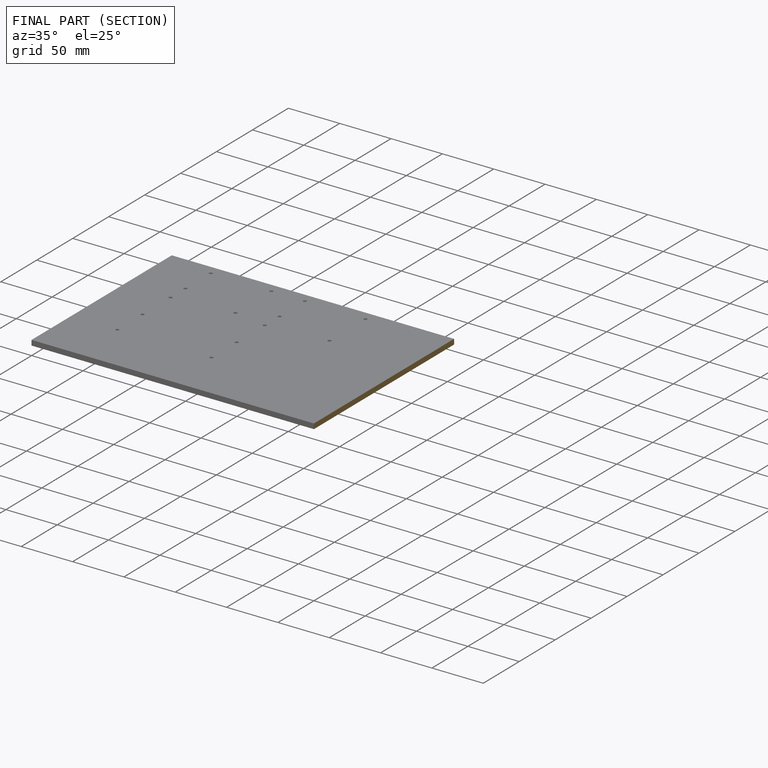
[diagram: finished part — half-section view (interior)]
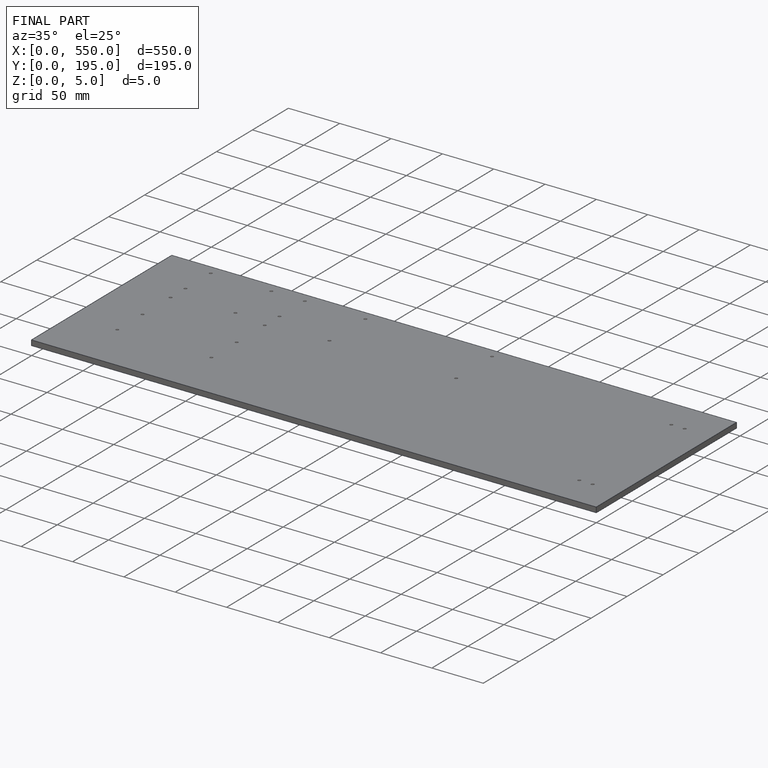
[diagram: finished part — iso view with bounding-box wireframe]
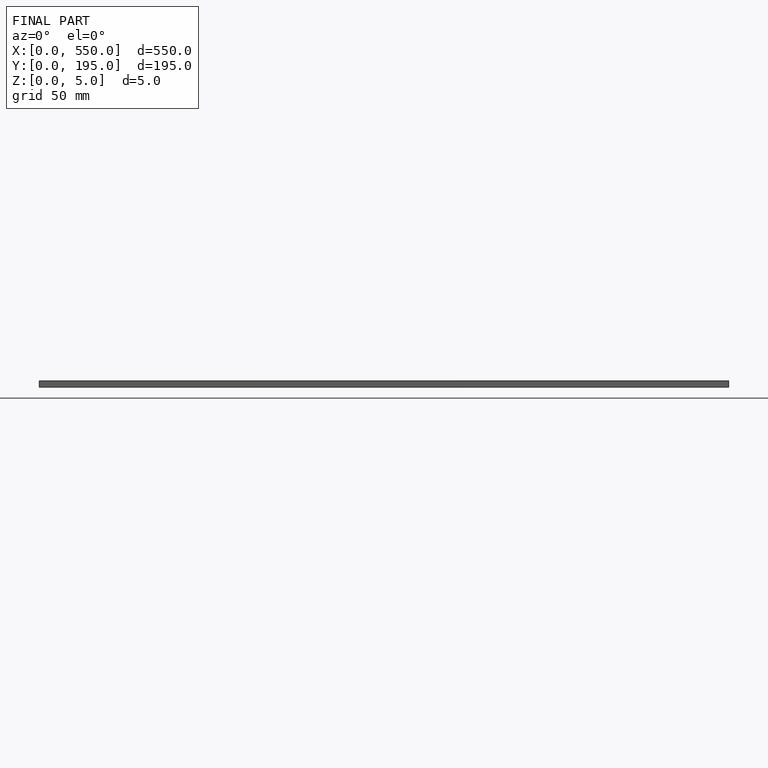
[diagram: finished part — front view with bounding-box wireframe]
